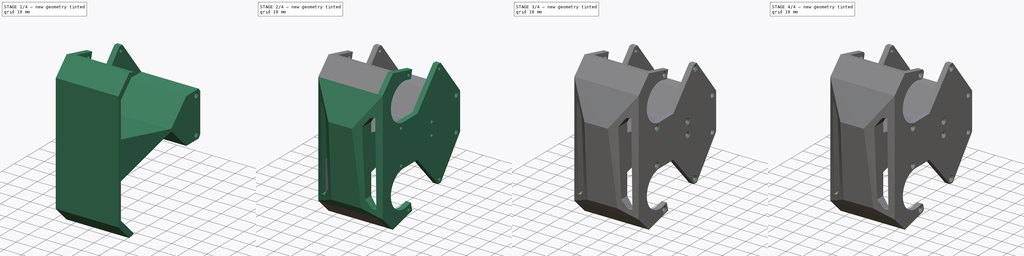
[diagram: build sequence overview — one tinted view per stage of 4, left to right]
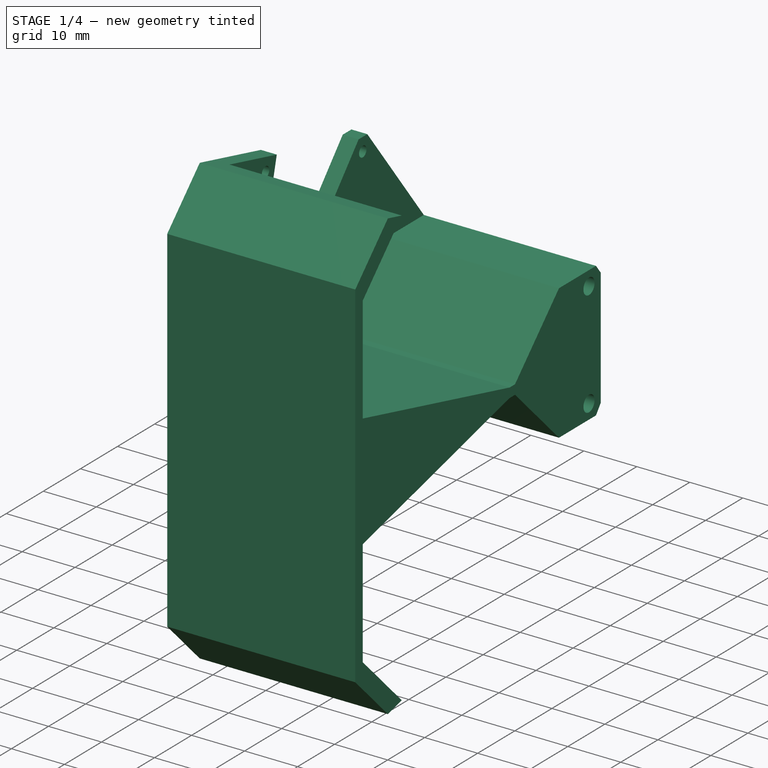
[diagram: stage 1 of 4 — iso view after this stage's code; geometry added in this stage tinted green]
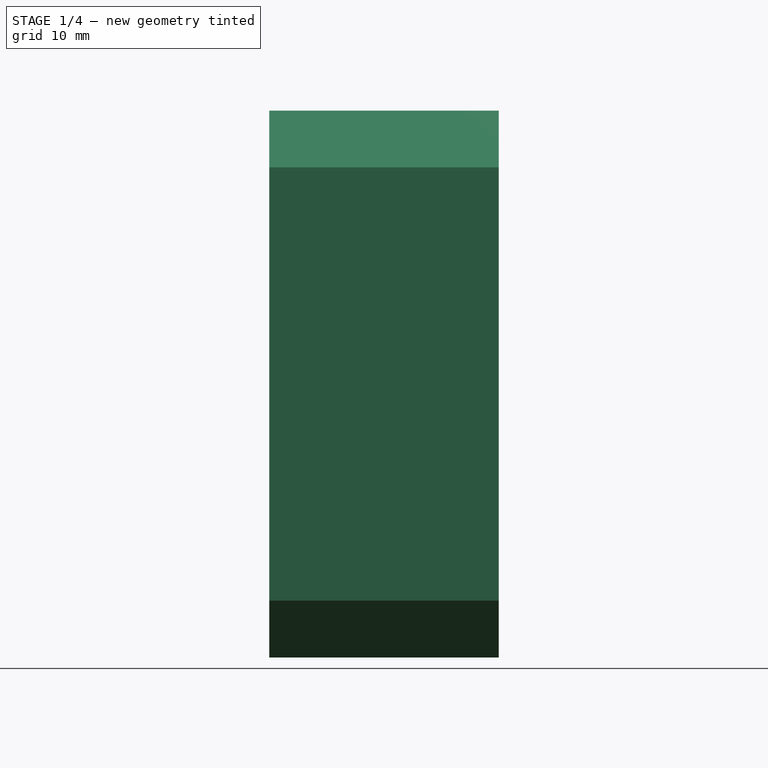
[diagram: stage 1 of 4 — front view after this stage's code; geometry added in this stage tinted green]
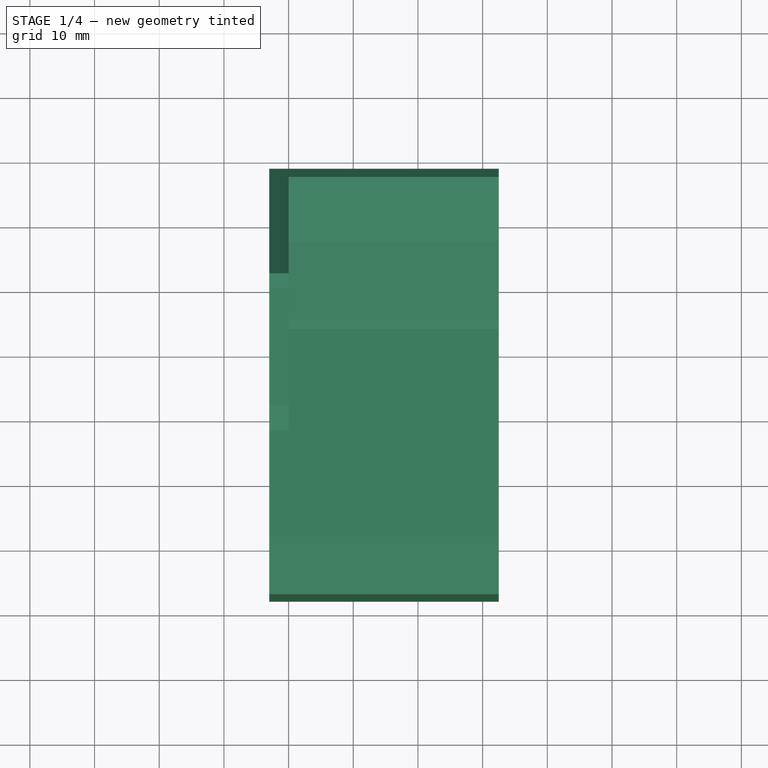
[diagram: stage 1 of 4 — top view after this stage's code; geometry added in this stage tinted green]
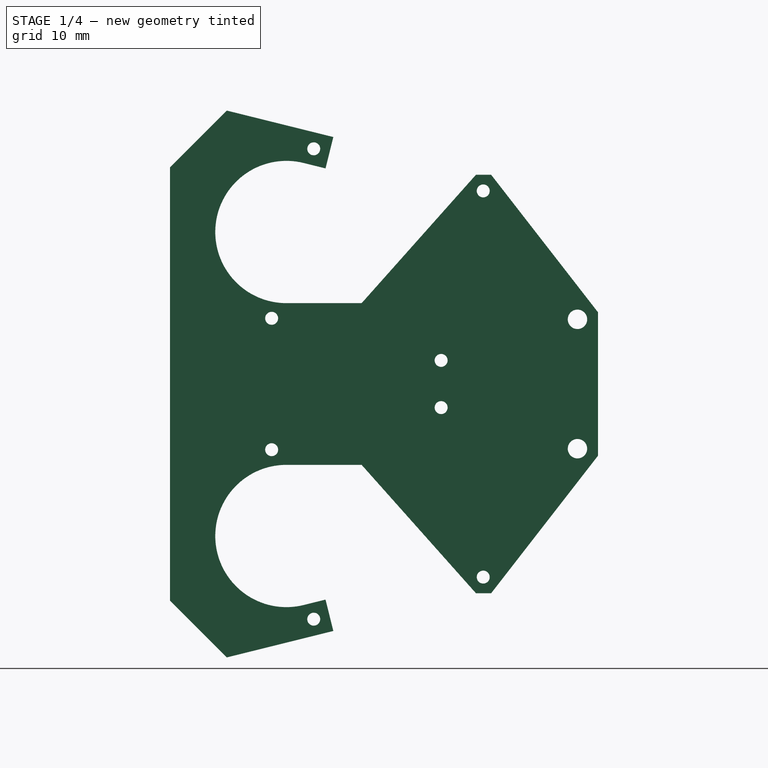
[diagram: stage 1 of 4 — right view after this stage's code; geometry added in this stage tinted green]
FCSTD DOCUMENT  (FreeCAD 0.21R33668 +26 (Git))
Label: Leg_frame_nee
License: All rights reserved
LicenseURL: https://en.wikipedia.org/wiki/All_rights_reserved
objects: Sketcher::SketchObject×8, PartDesign::Pad×3, PartDesign::Pocket×3, PartDesign::Chamfer×3, PartDesign::AdditiveLoft×1, PartDesign::Body×1
note: 29 computed .brp shape members not serialized (recipe doc carries the construction recipe); baked Part::Feature solids carry a one-line shape summary decoded from their .brp

FEATURE [Sketcher::SketchObject] Sketch
  FullyConstrained = true
  MapMode = 5
  Placement = pos=(0,0,0) rot=(0.57735,0.57735,0.57735;2.0944rad)
  Support = -> [YZ_Plane]
  sketch-geometry (68):
    g0: ArcOfCircle CenterX=0 CenterY=23.5 CenterZ=0 NormalX=0 NormalY=0 NormalZ=1 AngleXU=0 Radius=11 StartAngle=1.32738 EndAngle=4.71239
    g1: Circle CenterX=0 CenterY=23.5 CenterZ=0 NormalX=0 NormalY=0 NormalZ=1 AngleXU=0 Radius=16
    g2: LineSegment StartX=3.85635 StartY=39.0283 StartZ=0 EndX=33.9425 EndY=31.5566 EndZ=0
    g3: LineSegment StartX=33.9425 StartY=31.5566 StartZ=0 EndX=26.2298 EndY=0.5 EndZ=0
    g4: LineSegment StartX=26.2298 StartY=0.5 StartZ=0 EndX=-3.85635 EndY=7.97169 EndZ=0
    g5: ArcOfCircle CenterX=0 CenterY=-23.5 CenterZ=0 NormalX=0 NormalY=0 NormalZ=1 AngleXU=0 Radius=11 StartAngle=1.5708 EndAngle=4.95581
    g6: Circle CenterX=0 CenterY=-23.5 CenterZ=0 NormalX=0 NormalY=0 NormalZ=1 AngleXU=0 Radius=16
    g7: LineSegment StartX=3.85635 StartY=-39.0283 StartZ=0 EndX=33.9425 EndY=-31.5566 EndZ=0
    g8: LineSegment StartX=33.9425 StartY=-31.5566 StartZ=0 EndX=26.2298 EndY=-0.5 EndZ=0
    g9: LineSegment StartX=-3.85635 StartY=-7.97169 StartZ=0 EndX=26.2298 EndY=-0.5 EndZ=0
    g10: LineSegment StartX=0 StartY=23.5 StartZ=0 EndX=0 EndY=-23.5 EndZ=0
    g11: LineSegment StartX=45 StartY=10 StartZ=0 EndX=45 EndY=-10 EndZ=0
    g12: LineSegment StartX=4.22432 StartY=36.361 StartZ=0 EndX=30.4283 EndY=29.8534 EndZ=0
    g13: LineSegment StartX=30.4283 StartY=29.8534 StartZ=0 EndX=23.9208 EndY=3.64937 EndZ=0
    g14: LineSegment StartX=23.9208 StartY=3.64937 StartZ=0 EndX=-2.28328 EndY=10.157 EndZ=0
    g15: LineSegment StartX=-2.28328 StartY=10.157 StartZ=0 EndX=4.22432 EndY=36.361 EndZ=0
    g16: Circle CenterX=4.22432 CenterY=36.361 CenterZ=0 NormalX=0 NormalY=0 NormalZ=1 AngleXU=0 Radius=1
    g17: Circle CenterX=-2.28328 CenterY=10.157 CenterZ=0 NormalX=0 NormalY=0 NormalZ=1 AngleXU=0 Radius=1
    g18: Circle CenterX=23.9208 CenterY=3.64937 CenterZ=0 NormalX=0 NormalY=0 NormalZ=1 AngleXU=0 Radius=1
    g19: Circle CenterX=30.4283 CenterY=29.8534 CenterZ=0 NormalX=0 NormalY=0 NormalZ=1 AngleXU=0 Radius=1
    g20: LineSegment StartX=-2.28328 StartY=-10.157 StartZ=0 EndX=23.9208 EndY=-3.64937 EndZ=0
    g21: LineSegment StartX=23.9208 StartY=-3.64937 StartZ=0 EndX=30.4283 EndY=-29.8534 EndZ=0
    g22: LineSegment StartX=30.4283 StartY=-29.8534 StartZ=0 EndX=4.22432 EndY=-36.361 EndZ=0
    g23: LineSegment StartX=4.22432 StartY=-36.361 StartZ=0 EndX=-2.28328 EndY=-10.157 EndZ=0
    g24: Circle CenterX=-2.28328 CenterY=-10.157 CenterZ=0 NormalX=0 NormalY=0 NormalZ=1 AngleXU=0 Radius=1
    g25: Circle CenterX=4.22432 CenterY=-36.361 CenterZ=0 NormalX=0 NormalY=0 NormalZ=1 AngleXU=0 Radius=1
    g26: Circle CenterX=30.4283 CenterY=-29.8534 CenterZ=0 NormalX=0 NormalY=0 NormalZ=1 AngleXU=0 Radius=1
    g27: Circle CenterX=23.9208 CenterY=-3.64937 CenterZ=0 NormalX=0 NormalY=0 NormalZ=1 AngleXU=0 Radius=1
    g28: LineSegment StartX=0 StartY=23.5 StartZ=0 EndX=0.97052 EndY=23.259 EndZ=0
    g29: LineSegment StartX=0 StartY=-23.5 StartZ=0 EndX=0.97052 EndY=-23.259 EndZ=0
    g30: Circle CenterX=45 CenterY=10 CenterZ=0 NormalX=0 NormalY=0 NormalZ=1 AngleXU=0 Radius=1.5
    g31: Circle CenterX=45 CenterY=-10 CenterZ=0 NormalX=0 NormalY=0 NormalZ=1 AngleXU=0 Radius=1.5
    g32: LineSegment StartX=-9.22341 StartY=42.2766 StartZ=0 EndX=-18 EndY=33.5 EndZ=0
    g33: LineSegment StartX=-18 StartY=33.5 StartZ=0 EndX=-18 EndY=-33.5 EndZ=0
    g34: LineSegment StartX=-18 StartY=-33.5 StartZ=0 EndX=-9.22341 EndY=-42.2766 EndZ=0
    g35: LineSegment StartX=26.2298 StartY=0.5 StartZ=0 EndX=43.1548 EndY=12.5843 EndZ=0
    g36: LineSegment StartX=-18 StartY=30.3079 StartZ=0 EndX=-3.29791 EndY=40.805 EndZ=0
    g37: Circle CenterX=31 CenterY=35.5 CenterZ=0 NormalX=0 NormalY=0 NormalZ=1 AngleXU=0 Radius=3
    g38: LineSegment StartX=-16 StartY=-35.5 StartZ=0 EndX=-16 EndY=35.5 EndZ=0
    g39: LineSegment StartX=48.1754 StartY=11.0887 StartZ=0 EndX=48.1754 EndY=-11.0887 EndZ=0
    g40: LineSegment StartX=-9.0955 StartY=36.6633 StartZ=0 EndX=-14.197 EndY=16.1213 EndZ=0
    g41: LineSegment StartX=0 StartY=23.5 StartZ=0 EndX=-11.6462 EndY=26.3923 EndZ=0
    g42: LineSegment StartX=-9.22341 StartY=42.2766 StartZ=0 EndX=7.25317 EndY=38.1847 EndZ=0
    g43: LineSegment StartX=-9.22341 StartY=-42.2766 StartZ=0 EndX=7.25317 EndY=-38.1847 EndZ=0
    g44: Circle CenterX=30.4283 CenterY=-29.8534 CenterZ=0 NormalX=0 NormalY=0 NormalZ=1 AngleXU=0 Radius=2.5
    g45: LineSegment StartX=-18 StartY=-30.3079 StartZ=0 EndX=-3.29791 EndY=-40.805 EndZ=0
    g46: LineSegment StartX=48.1754 StartY=11.0887 StartZ=0 EndX=31.6518 EndY=32.3534 EndZ=0
    g47: LineSegment StartX=7.25317 StartY=38.1847 StartZ=0 EndX=6.04806 EndY=33.3321 EndZ=0
    g48: LineSegment StartX=6.04806 StartY=33.3321 StartZ=0 EndX=2.65124 EndY=34.1757 EndZ=0
    g49: Circle CenterX=4.22432 CenterY=36.361 CenterZ=0 NormalX=0 NormalY=0 NormalZ=1 AngleXU=0 Radius=2.5
    g50: LineSegment StartX=48.1754 StartY=-11.0887 StartZ=0 EndX=31.6518 EndY=-32.3534 EndZ=0
    g51: LineSegment StartX=7.25317 StartY=-38.1847 StartZ=0 EndX=6.04806 EndY=-33.3321 EndZ=0
    g52: LineSegment StartX=6.04806 StartY=-33.3321 StartZ=0 EndX=2.65124 EndY=-34.1757 EndZ=0
    g53: Circle CenterX=4.22432 CenterY=-36.361 CenterZ=0 NormalX=0 NormalY=0 NormalZ=1 AngleXU=0 Radius=2.5
    g54: LineSegment StartX=29.307 StartY=32.3534 StartZ=0 EndX=31.6518 EndY=32.3534 EndZ=0
    g55: Circle CenterX=30.4283 CenterY=29.8534 CenterZ=0 NormalX=0 NormalY=0 NormalZ=1 AngleXU=0 Radius=2.5
    g56: LineSegment StartX=-2e-15 StartY=12.5 StartZ=0 EndX=11.6289 EndY=12.5 EndZ=0
    g57: LineSegment StartX=11.6289 StartY=12.5 StartZ=0 EndX=29.307 EndY=32.3534 EndZ=0
    g58: LineSegment StartX=29.307 StartY=-32.3534 StartZ=0 EndX=31.6518 EndY=-32.3534 EndZ=0
    g59: LineSegment StartX=7e-16 StartY=-12.5 StartZ=0 EndX=11.6289 EndY=-12.5 EndZ=0
    g60: LineSegment StartX=11.6289 StartY=-12.5 StartZ=0 EndX=29.307 EndY=-32.3534 EndZ=0
    g61: LineSegment StartX=43.4123 StartY=12.75 StartZ=0 EndX=41.8246 EndY=10 EndZ=0
    g62: LineSegment StartX=41.8246 StartY=10 StartZ=0 EndX=43.4123 EndY=7.25 EndZ=0
    g63: LineSegment StartX=43.4123 StartY=7.25 StartZ=0 EndX=46.5877 EndY=7.25 EndZ=0
    g64: LineSegment StartX=46.5877 StartY=7.25 StartZ=0 EndX=48.1754 EndY=10 EndZ=0
    g65: LineSegment StartX=48.1754 StartY=10 StartZ=0 EndX=46.5877 EndY=12.75 EndZ=0
    g66: LineSegment StartX=46.5877 StartY=12.75 StartZ=0 EndX=43.4123 EndY=12.75 EndZ=0
    g67: Circle CenterX=45 CenterY=10 CenterZ=0 NormalX=0 NormalY=0 NormalZ=1 AngleXU=0 Radius=3.17543
  constraints (174):
    c: Coincident(g3,g2)
    c: Coincident(g4,g3)
    c: Tangent(g4,g1) = 1.5708
    c: Tangent(g2,g1) = 1.5708
    c: Coincident(g0,g1)
    c: Diameter(g6) = 32
    c: Coincident(g8,g7)
    c: Tangent(g7,g6) = -1.5708
    c: Coincident(g5,g6)
    c: Coincident(g9,g8)
    c: Tangent(g9,g6) = 1.5708
    c: Equal(g9,g4)
    c: Coincident(g10,g0)
    c: Coincident(g10,g5)
    c: PointOnObject(g-1,g10)
    c: Symmetric(g5,g0,g-1)
    c: DistanceY(g10,g10) = 47
    c: DistanceY(g11,g11) = 20
    c: Perpendicular(g2,g3)
    c: Perpendicular(g3,g4)
    c: Perpendicular(g8,g9)
    c: Perpendicular(g7,g8)
    c: Distance(g2) = 31
    c: Coincident(g12,g13)
    c: Coincident(g13,g14)
    c: Coincident(g14,g15)
    c: Coincident(g15,g12)
    c: Coincident(g16,g12)
    c: Coincident(g17,g14)
    c: Coincident(g18,g13)
    c: Coincident(g19,g12)
    c: Equal(g1,g6)
    c: Equal(g0,g5)
    c: Diameter(g5) = 22
    c: Symmetric(g11,g11,g-1)
    c: DistanceX(g-1,g11) = 45
    c: Equal(g17,g16)
    c: Equal(g16,g19)
    c: Equal(g19,g18)
    c: Equal(g15,g12)
    c: Equal(g12,g13)
    c: Equal(g13,g14)
    c: Distance(g12) = 27
    c: Coincident(g20,g21)
    c: Coincident(g21,g22)
    c: Coincident(g22,g23)
    c: Coincident(g23,g20)
    c: Coincident(g24,g20)
    c: Coincident(g25,g22)
    c: Coincident(g26,g21)
    c: Coincident(g27,g20)
    c: Equal(g25,g24)
    c: Equal(g24,g27)
    c: Equal(g27,g26)
    c: Equal(g16,g24) = 2
    c: Equal(g23,g20)
    c: Equal(g20,g21)
    c: Equal(g21,g22)
    c: Equal(g12,g20) = 27
    c: Coincident(g28,g0)
    c: PointOnObject(g28,g15)
    c: Parallel(g28,g2)
    c: Symmetric(g17,g16,g28)
    c: Perpendicular(g15,g12)
    c: Coincident(g29,g5)
    c: PointOnObject(g29,g23)
    c: Parallel(g22,g7)
    c: Symmetric(g24,g25,g29)
    c: Symmetric(g28,g29,g-1)
    c: Coincident(g30,g11)
    c: Coincident(g31,g11)
    c: Diameter(g30) = 3
    c: Equal(g31,g30)
    c: Coincident(g33,g32)
    c: Coincident(g34,g33)
    c: Coincident(g35,g3)
    c: DistanceY(g8,g3) = 1
    c: PointOnObject(g36,g33)
    c: Tangent(g36,g1)
    c: Diameter(g37) = 6
    c: DistanceX(g0,g37) = 31
    c: DistanceY(g0,g37) = 12
    c: PointOnObject(g38,g34)
    c: PointOnObject(g38,g32)
    c: Vertical(g38)
    c: Tangent(g38,g6)
    c: Parallel(g35,g36)
    c: Angle(g33,g32) = 2.35619
    c: DistanceY(g33,g33) = 67
    c: Symmetric(g32,g33,g-1)
    c: DistanceY(g36,g32) = 3.1921
    c: Symmetric(g39,g39,g-1)
    c: PointOnObject(g40,g1)
    c: PointOnObject(g40,g1)
    c: Coincident(g41,g0)
    c: PointOnObject(g41,g40)
    c: Perpendicular(g40,g41)
    c: Distance(g41) = 12
    c: DistanceX(g32,g40) = 3.80303
    c: DistanceX(g32,g38) = 2
    c: Symmetric(g32,g34,g-1)
    c: Distance(g28) = 1
    c: Coincident(g42,g32)
    c: PointOnObject(g36,g42)
    c: Tangent(g42,g2)
    c: Parallel(g28,g41)
    c: Coincident(g43,g34)
    c: Diameter(g17) = 2
    c: Tangent(g7,g43)
    c: Coincident(g44,g26)
    c: Tangent(g44,g7)
    c: PointOnObject(g45,g43)
    c: Tangent(g45,g6)
    c: Symmetric(g36,g45,g-1)
    c: Coincident(g46,g39)
    c: Coincident(g46,g54)
    c: Coincident(g47,g42)
    c: Coincident(g48,g47)
    c: Tangent(g48,g0) = -1.5708
    c: Coincident(g49,g16)
    c: Tangent(g49,g2)
    c: Coincident(g50,g39)
    c: Coincident(g50,g58)
    c: Coincident(g51,g43)
    c: Coincident(g52,g51)
    c: Tangent(g52,g5) = 1.5708
    c: Coincident(g53,g22)
    c: Tangent(g53,g51)
    c: Tangent(g53,g43)
    c: Perpendicular(g43,g51)
    c: Perpendicular(g52,g51)
    c: Coincident(g57,g54)
    c: Coincident(g55,g19)
    c: Tangent(g55,g2)
    c: Tangent(g54,g55)
    c: Tangent(g46,g55)
    c: Coincident(g56,g57)
    c: Tangent(g57,g55)
    c: Tangent(g56,g0) = -1.5708
    c: Tangent(g47,g49)
    c: Perpendicular(g42,g47)
    c: Perpendicular(g48,g47)
    c: Horizontal(g56)
    c: Horizontal(g54)
    c: Tangent(g1,g57)
    c: Coincident(g60,g58)
    c: Coincident(g59,g60)
    c: Horizontal(g58)
    c: Tangent(g58,g44)
    c: Tangent(g50,g44)
    c: Tangent(g60,g44)
    c: Tangent(g59,g5) = 1.5708
    c: Tangent(g60,g6)
    c: Horizontal(g59)
    c: Coincident(g61,g62)
    c: Coincident(g62,g63)
    c: Coincident(g63,g64)
    c: Coincident(g64,g65)
    c: Coincident(g65,g66)
    c: Coincident(g66,g61)
    c: Equal(g61, g62-g66) x5
    c: PointOnObject(g61,g67)
    c: PointOnObject(g62,g67)
    c: PointOnObject(g63,g67)
    c: PointOnObject(g64,g67)
    c: PointOnObject(g65,g67)
    c: PointOnObject(g66,g67)
    c: Coincident(g67,g30)
    c: Tangent(g35,g67) = 1.5708
    c: Horizontal(g66)
    c: DistanceY(g62,g61) = 5.5
    c: Tangent(g67,g46)
    c: Tangent(g67,g39)
    c: DistanceY(g46,g37) = 3.1466
FEATURE [PartDesign::Pad] Pad
  Direction = (1,-2e-16,3e-16)
  Length = 3
  Length2 = 10
  Placement = pos=(0,0,0) rot=(1,1,1;2.0944rad)
  Profile = -> Sketch
  ReferenceAxis = -> Sketch [N_Axis]
  Reversed = true
  Type = 0
FEATURE [Sketcher::SketchObject] Sketch001
  ExternalGeometry = -> [Pad]
  FullyConstrained = true
  MapMode = 5
  Placement = pos=(-2.1e-15,0,0) rot=(0.57735,0.57735,0.57735;2.0944rad)
  Support = -> [Pad]
  sketch-geometry (35):
    g0: LineSegment StartX=-9.22341 StartY=42.2766 StartZ=0 EndX=-18 EndY=33.5 EndZ=0
    g1: LineSegment StartX=-18 StartY=33.5 StartZ=0 EndX=-18 EndY=-33.5 EndZ=0
    g2: LineSegment StartX=-18 StartY=-33.5 StartZ=0 EndX=-9.22341 EndY=-42.2766 EndZ=0
    g3: LineSegment StartX=-9.22341 StartY=-42.2766 StartZ=0 EndX=-5.48608 EndY=-41.3484 EndZ=0
    g4: LineSegment StartX=7.8e-15 StartY=23.5 StartZ=0 EndX=-11.6462 EndY=26.3923 EndZ=0
    g5: Circle CenterX=7.8e-15 CenterY=23.5 CenterZ=0 NormalX=0 NormalY=0 NormalZ=1 AngleXU=0 Radius=16.5
    g6: LineSegment StartX=-16 StartY=30.8345 StartZ=0 EndX=-5.48608 EndY=41.3484 EndZ=0
    g7: LineSegment StartX=-5.48608 StartY=41.3484 StartZ=0 EndX=-9.22341 EndY=42.2766 EndZ=0
    g8: LineSegment StartX=-16 StartY=30.8345 StartZ=0 EndX=-16 EndY=10.7299 EndZ=0
    g9: LineSegment StartX=-5.48608 StartY=-41.3484 StartZ=0 EndX=-16 EndY=-30.8345 EndZ=0
    g10: LineSegment StartX=-16 StartY=-30.8345 StartZ=0 EndX=-16 EndY=-10.7299 EndZ=0
    g11: LineSegment StartX=-16 StartY=-10.7299 StartZ=0 EndX=23.5844 EndY=-0.899365 EndZ=0
    g12: Circle CenterX=45 CenterY=-10 CenterZ=0 NormalX=0 NormalY=0 NormalZ=1 AngleXU=0 Radius=1.5
    g13: LineSegment StartX=43.4123 StartY=12.75 StartZ=0 EndX=41.8246 EndY=10 EndZ=0
    g14: LineSegment StartX=41.8246 StartY=10 StartZ=0 EndX=43.4123 EndY=7.25 EndZ=0
    g15: LineSegment StartX=43.4123 StartY=7.25 StartZ=0 EndX=46.5877 EndY=7.25 EndZ=0
    g16: LineSegment StartX=46.5877 StartY=7.25 StartZ=0 EndX=48.1754 EndY=10 EndZ=0
    g17: LineSegment StartX=48.1754 StartY=10 StartZ=0 EndX=46.5877 EndY=12.75 EndZ=0
    g18: LineSegment StartX=46.5877 StartY=12.75 StartZ=0 EndX=43.4123 EndY=12.75 EndZ=0
    g19: Circle CenterX=45 CenterY=10 CenterZ=0 NormalX=0 NormalY=0 NormalZ=1 AngleXU=0 Radius=3.17543
    g20: LineSegment StartX=-16 StartY=10.7299 StartZ=0 EndX=23.5844 EndY=0.899365 EndZ=0
    g21: LineSegment StartX=-8.91672 StartY=37.3832 StartZ=0 EndX=-14.3758 EndY=15.4014 EndZ=0
    g22: Circle CenterX=45 CenterY=10 CenterZ=0 NormalX=0 NormalY=0 NormalZ=1 AngleXU=0 Radius=1.5
    g23: LineSegment StartX=23.5844 StartY=0.899365 StartZ=0 EndX=25.0598 EndY=0.899365 EndZ=0
    g24: LineSegment StartX=25.0598 StartY=0.899365 StartZ=0 EndX=36.9105 EndY=12.75 EndZ=0
    g25: LineSegment StartX=23.5844 StartY=-0.899365 StartZ=0 EndX=25.0598 EndY=-0.899365 EndZ=0
    g26: LineSegment StartX=25.0598 StartY=-0.899365 StartZ=0 EndX=36.9105 EndY=-12.75 EndZ=0
    g27: LineSegment StartX=36.9105 StartY=-12.75 StartZ=0 EndX=46.8845 EndY=-12.75 EndZ=0
    g28: LineSegment StartX=36.9105 StartY=12.75 StartZ=0 EndX=46.8845 EndY=12.75 EndZ=0
    g29: LineSegment StartX=46.8845 StartY=12.75 StartZ=0 EndX=48.1754 EndY=11.0887 EndZ=0
    g30: LineSegment StartX=48.1754 StartY=11.0887 StartZ=0 EndX=48.1754 EndY=-11.0887 EndZ=0
    g31: LineSegment StartX=48.1754 StartY=-11.0887 StartZ=0 EndX=46.8845 EndY=-12.75 EndZ=0
    g32: LineSegment StartX=4.22432 StartY=36.361 StartZ=0 EndX=-2.28328 EndY=10.157 EndZ=0
    g33: Circle CenterX=-2.28328 CenterY=10.157 CenterZ=0 NormalX=0 NormalY=0 NormalZ=1 AngleXU=0 Radius=2.75
    g34: Circle CenterX=23.9208 CenterY=3.64937 CenterZ=0 NormalX=0 NormalY=0 NormalZ=1 AngleXU=0 Radius=2.75
  constraints (81):
    c: Coincident(g13,g14)
    c: Coincident(g14,g15)
    c: Coincident(g15,g16)
    c: Coincident(g16,g17)
    c: Coincident(g17,g18)
    c: Coincident(g18,g13)
    c: Equal(g13, g14-g18) x5
    c: PointOnObject(g13,g19)
    c: PointOnObject(g14,g19)
    c: PointOnObject(g15,g19)
    c: PointOnObject(g16,g19)
    c: PointOnObject(g17,g19)
    c: PointOnObject(g18,g19)
    c: Coincident(g19,g-13)
    c: Horizontal(g18)
    c: DistanceY(g14,g13) = 5.5
    c: Diameter(g5) = 33
    c: Tangent(g5,g6)
    c: Coincident(g4,g5)
    c: Coincident(g4,g-5)
    c: Coincident(g0,g7)
    c: Coincident(g0,g-4)
    c: Coincident(g6,g7)
    c: Coincident(g6,g8)
    c: Coincident(g0,g1)
    c: Coincident(g0,g-6)
    c: PointOnObject(g6,g-4)
    c: Parallel(g6,g0)
    c: PointOnObject(g21,g5)
    c: PointOnObject(g4,g21)
    c: Symmetric(g21,g21,g4)
    c: Distance(g4) = 12
    c: Coincident(g8,g20)
    c: Vertical(g8)
    c: DistanceX(g0,g6) = 2
    c: Coincident(g1,g2)
    c: Coincident(g1,g-9)
    c: Coincident(g2,g3)
    c: Coincident(g2,g-9)
    c: Symmetric(g6,g3,g-1)
    c: Coincident(g3,g9)
    c: Coincident(g9,g10)
    c: Symmetric(g6,g9,g-1)
    c: Coincident(g10,g11)
    c: Symmetric(g8,g10,g-1)
    c: Coincident(g22,g19)
    c: Equal(g-13,g22)
    c: Equal(g22,g12)
    c: Coincident(g12,g-14)
    c: Symmetric(g11,g20,g-1)
    c: Coincident(g23,g20)
    c: Coincident(g24,g23)
    c: Parallel(g24,g6)
    c: Coincident(g25,g11)
    c: Coincident(g26,g25)
    c: Coincident(g27,g26)
    c: Symmetric(g23,g25,g-1)
    c: Symmetric(g24,g26,g-1)
    c: Coincident(g28,g24)
    c: PointOnObject(g28,g-12)
    c: Coincident(g29,g28)
    c: Coincident(g29,g-12)
    c: Coincident(g30,g29)
    c: Coincident(g30,g-11)
    c: Coincident(g31,g30)
    c: Coincident(g31,g27)
    c: Symmetric(g28,g27,g-1)
    c: Coincident(g32,g-17)
    c: Coincident(g32,g-18)
    c: Parallel(g32,g21)
    c: Coincident(g33,g32)
    c: Coincident(g34,g-19)
    c: Equal(g33,g34)
    c: Diameter(g34) = 5.5
    c: Horizontal(g23)
    c: Tangent(g34,g23)
    c: Tangent(g24,g34)
    c: Tangent(g20,g34)
    c: Tangent(g20,g33)
    c: PointOnObject(g17,g28)
    c: PointOnObject(g13,g28)
FEATURE [PartDesign::Pad] Pad001
  BaseFeature = -> Pad
  Direction = (1,-4e-16,4e-16)
  Length = 32.5
  Length2 = 10
  Placement = pos=(0,0,0) rot=(1,1,1;2.0944rad)
  Profile = -> Sketch001
  ReferenceAxis = -> Sketch001 [N_Axis]
  Type = 0
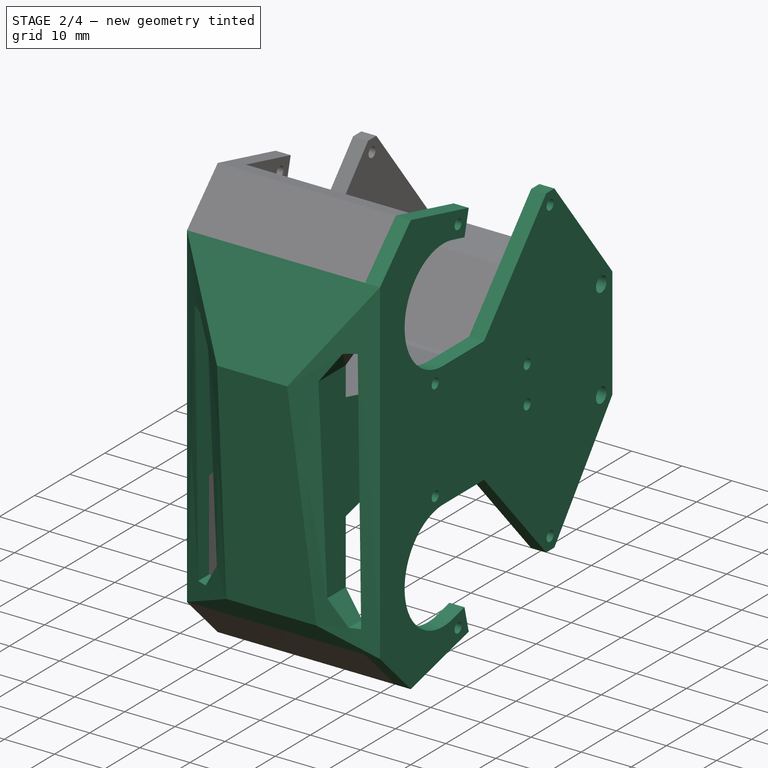
[diagram: stage 2 of 4 — iso view after this stage's code; geometry added in this stage tinted green]
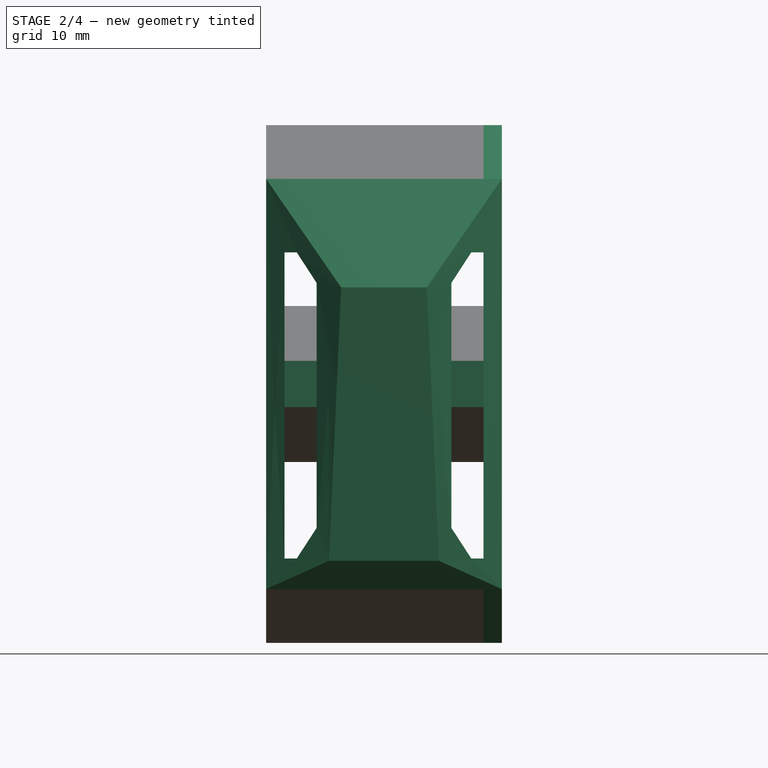
[diagram: stage 2 of 4 — front view after this stage's code; geometry added in this stage tinted green]
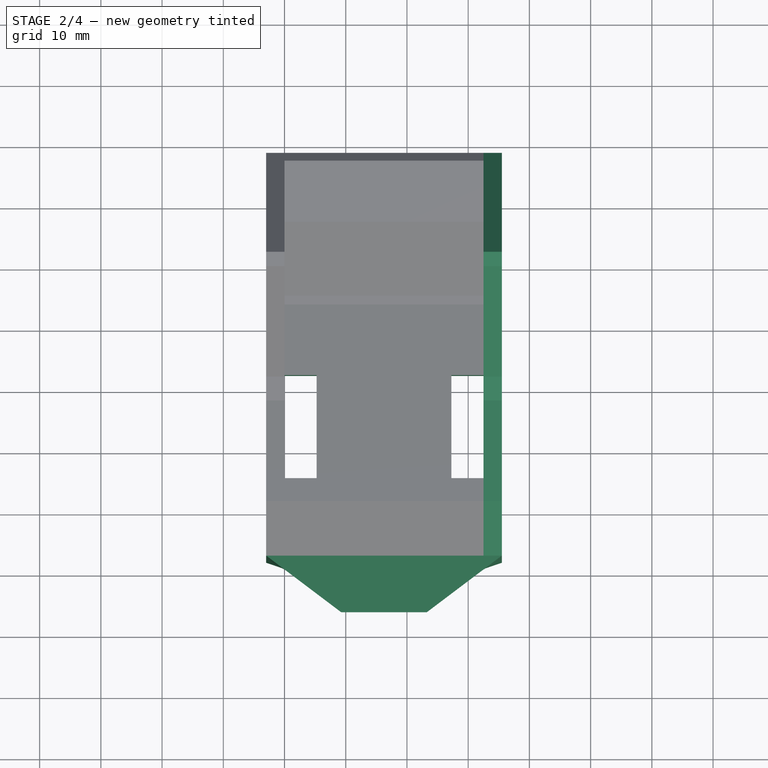
[diagram: stage 2 of 4 — top view after this stage's code; geometry added in this stage tinted green]
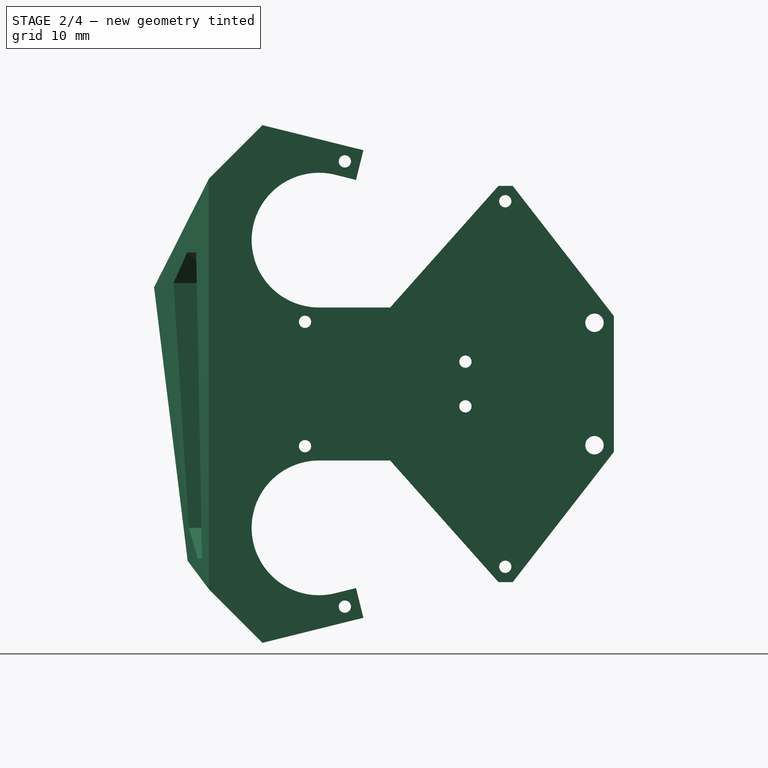
[diagram: stage 2 of 4 — right view after this stage's code; geometry added in this stage tinted green]
FEATURE [Sketcher::SketchObject] Sketch002
  FullyConstrained = true
  MapMode = 5
  Placement = pos=(32.5,-2.16e-14,1.8e-14) rot=(0.57735,0.57735,0.57735;2.0944rad)
  Support = -> [Pad001]
  expr: Constraints[101] = Sketch.Constraints[101]
  expr: Constraints[107] = Sketch.Constraints[107]
  expr: Constraints[16] = Sketch.Constraints[16]
  expr: Constraints[174] = Sketch.Constraints[174]
  expr: Constraints[17] = Sketch.Constraints[17]
  expr: Constraints[22] = Sketch.Constraints[22]
  expr: Constraints[33] = Sketch.Constraints[33]
  expr: Constraints[35] = Sketch.Constraints[35]
  expr: Constraints[42] = Sketch.Constraints[42]
  expr: Constraints[5] = Sketch.Constraints[5]
  expr: Constraints[71] = Sketch.Constraints[71]
  expr: Constraints[76] = Sketch.Constraints[76]
  expr: Constraints[79] = Sketch.Constraints[79]
  expr: Constraints[80] = Sketch.Constraints[80]
  expr: Constraints[81] = Sketch.Constraints[81]
  expr: Constraints[87] = Sketch.Constraints[87]
  expr: Constraints[88] = Sketch.Constraints[88]
  expr: Constraints[97] = Sketch.Constraints[97]
  expr: Constraints[99] = Sketch.Constraints[99]
  sketch-geometry (68):
    g0: ArcOfCircle CenterX=0 CenterY=23.5 CenterZ=0 NormalX=0 NormalY=0 NormalZ=1 AngleXU=0 Radius=11 StartAngle=1.32738 EndAngle=4.71239
    g1: Circle CenterX=0 CenterY=23.5 CenterZ=0 NormalX=0 NormalY=0 NormalZ=1 AngleXU=0 Radius=16
    g2: LineSegment StartX=3.85635 StartY=39.0283 StartZ=0 EndX=33.9425 EndY=31.5566 EndZ=0
    g3: LineSegment StartX=33.9425 StartY=31.5566 StartZ=0 EndX=26.2298 EndY=0.5 EndZ=0
    g4: LineSegment StartX=26.2298 StartY=0.5 StartZ=0 EndX=-3.85635 EndY=7.97169 EndZ=0
    g5: ArcOfCircle CenterX=0 CenterY=-23.5 CenterZ=0 NormalX=0 NormalY=0 NormalZ=1 AngleXU=0 Radius=11 StartAngle=1.5708 EndAngle=4.95581
    g6: Circle CenterX=0 CenterY=-23.5 CenterZ=0 NormalX=0 NormalY=0 NormalZ=1 AngleXU=0 Radius=16
    g7: LineSegment StartX=3.85635 StartY=-39.0283 StartZ=0 EndX=33.9425 EndY=-31.5566 EndZ=0
    g8: LineSegment StartX=33.9425 StartY=-31.5566 StartZ=0 EndX=26.2298 EndY=-0.5 EndZ=0
    g9: LineSegment StartX=-3.85635 StartY=-7.97169 StartZ=0 EndX=26.2298 EndY=-0.5 EndZ=0
    g10: LineSegment StartX=0 StartY=23.5 StartZ=0 EndX=0 EndY=-23.5 EndZ=0
    g11: LineSegment StartX=45 StartY=10 StartZ=0 EndX=45 EndY=-10 EndZ=0
    g12: LineSegment StartX=4.22432 StartY=36.361 StartZ=0 EndX=30.4283 EndY=29.8534 EndZ=0
    g13: LineSegment StartX=30.4283 StartY=29.8534 StartZ=0 EndX=23.9208 EndY=3.64937 EndZ=0
    g14: LineSegment StartX=23.9208 StartY=3.64937 StartZ=0 EndX=-2.28328 EndY=10.157 EndZ=0
    g15: LineSegment StartX=-2.28328 StartY=10.157 StartZ=0 EndX=4.22432 EndY=36.361 EndZ=0
    g16: Circle CenterX=4.22432 CenterY=36.361 CenterZ=0 NormalX=0 NormalY=0 NormalZ=1 AngleXU=0 Radius=1
    g17: Circle CenterX=-2.28328 CenterY=10.157 CenterZ=0 NormalX=0 NormalY=0 NormalZ=1 AngleXU=0 Radius=1
    g18: Circle CenterX=23.9208 CenterY=3.64937 CenterZ=0 NormalX=0 NormalY=0 NormalZ=1 AngleXU=0 Radius=1
    g19: Circle CenterX=30.4283 CenterY=29.8534 CenterZ=0 NormalX=0 NormalY=0 NormalZ=1 AngleXU=0 Radius=1
    g20: LineSegment StartX=-2.28328 StartY=-10.157 StartZ=0 EndX=23.9208 EndY=-3.64937 EndZ=0
    g21: LineSegment StartX=23.9208 StartY=-3.64937 StartZ=0 EndX=30.4283 EndY=-29.8534 EndZ=0
    g22: LineSegment StartX=30.4283 StartY=-29.8534 StartZ=0 EndX=4.22432 EndY=-36.361 EndZ=0
    g23: LineSegment StartX=4.22432 StartY=-36.361 StartZ=0 EndX=-2.28328 EndY=-10.157 EndZ=0
    g24: Circle CenterX=-2.28328 CenterY=-10.157 CenterZ=0 NormalX=0 NormalY=0 NormalZ=1 AngleXU=0 Radius=1
    g25: Circle CenterX=4.22432 CenterY=-36.361 CenterZ=0 NormalX=0 NormalY=0 NormalZ=1 AngleXU=0 Radius=1
    g26: Circle CenterX=30.4283 CenterY=-29.8534 CenterZ=0 NormalX=0 NormalY=0 NormalZ=1 AngleXU=0 Radius=1
    g27: Circle CenterX=23.9208 CenterY=-3.64937 CenterZ=0 NormalX=0 NormalY=0 NormalZ=1 AngleXU=0 Radius=1
    g28: LineSegment StartX=0 StartY=23.5 StartZ=0 EndX=0.97052 EndY=23.259 EndZ=0
    g29: LineSegment StartX=0 StartY=-23.5 StartZ=0 EndX=0.97052 EndY=-23.259 EndZ=0
    g30: Circle CenterX=45 CenterY=10 CenterZ=0 NormalX=0 NormalY=0 NormalZ=1 AngleXU=0 Radius=1.5
    g31: Circle CenterX=45 CenterY=-10 CenterZ=0 NormalX=0 NormalY=0 NormalZ=1 AngleXU=0 Radius=1.5
    g32: LineSegment StartX=-9.22341 StartY=42.2766 StartZ=0 EndX=-18 EndY=33.5 EndZ=0
    g33: LineSegment StartX=-18 StartY=33.5 StartZ=0 EndX=-18 EndY=-33.5 EndZ=0
    g34: LineSegment StartX=-18 StartY=-33.5 StartZ=0 EndX=-9.22341 EndY=-42.2766 EndZ=0
    g35: LineSegment StartX=26.2298 StartY=0.5 StartZ=0 EndX=43.1548 EndY=12.5843 EndZ=0
    g36: LineSegment StartX=-18 StartY=30.3079 StartZ=0 EndX=-3.29791 EndY=40.805 EndZ=0
    g37: Circle CenterX=31 CenterY=35.5 CenterZ=0 NormalX=0 NormalY=0 NormalZ=1 AngleXU=0 Radius=3
    g38: LineSegment StartX=-16 StartY=-35.5 StartZ=0 EndX=-16 EndY=35.5 EndZ=0
    g39: LineSegment StartX=48.1754 StartY=11.0887 StartZ=0 EndX=48.1754 EndY=-11.0887 EndZ=0
    g40: LineSegment StartX=-9.0955 StartY=36.6633 StartZ=0 EndX=-14.197 EndY=16.1213 EndZ=0
    g41: LineSegment StartX=0 StartY=23.5 StartZ=0 EndX=-11.6462 EndY=26.3923 EndZ=0
    g42: LineSegment StartX=-9.22341 StartY=42.2766 StartZ=0 EndX=7.25317 EndY=38.1847 EndZ=0
    g43: LineSegment StartX=-9.22341 StartY=-42.2766 StartZ=0 EndX=7.25317 EndY=-38.1847 EndZ=0
    g44: Circle CenterX=30.4283 CenterY=-29.8534 CenterZ=0 NormalX=0 NormalY=0 NormalZ=1 AngleXU=0 Radius=2.5
    g45: LineSegment StartX=-18 StartY=-30.3079 StartZ=0 EndX=-3.29791 EndY=-40.805 EndZ=0
    g46: LineSegment StartX=48.1754 StartY=11.0887 StartZ=0 EndX=31.6518 EndY=32.3534 EndZ=0
    g47: LineSegment StartX=7.25317 StartY=38.1847 StartZ=0 EndX=6.04806 EndY=33.3321 EndZ=0
    g48: LineSegment StartX=6.04806 StartY=33.3321 StartZ=0 EndX=2.65124 EndY=34.1757 EndZ=0
    g49: Circle CenterX=4.22432 CenterY=36.361 CenterZ=0 NormalX=0 NormalY=0 NormalZ=1 AngleXU=0 Radius=2.5
    g50: LineSegment StartX=48.1754 StartY=-11.0887 StartZ=0 EndX=31.6518 EndY=-32.3534 EndZ=0
    g51: LineSegment StartX=7.25317 StartY=-38.1847 StartZ=0 EndX=6.04806 EndY=-33.3321 EndZ=0
    g52: LineSegment StartX=6.04806 StartY=-33.3321 StartZ=0 EndX=2.65124 EndY=-34.1757 EndZ=0
    g53: Circle CenterX=4.22432 CenterY=-36.361 CenterZ=0 NormalX=0 NormalY=0 NormalZ=1 AngleXU=0 Radius=2.5
    g54: LineSegment StartX=29.307 StartY=32.3534 StartZ=0 EndX=31.6518 EndY=32.3534 EndZ=0
    g55: Circle CenterX=30.4283 CenterY=29.8534 CenterZ=0 NormalX=0 NormalY=0 NormalZ=1 AngleXU=0 Radius=2.5
    g56: LineSegment StartX=-2e-15 StartY=12.5 StartZ=0 EndX=11.6289 EndY=12.5 EndZ=0
    g57: LineSegment StartX=11.6289 StartY=12.5 StartZ=0 EndX=29.307 EndY=32.3534 EndZ=0
    g58: LineSegment StartX=29.307 StartY=-32.3534 StartZ=0 EndX=31.6518 EndY=-32.3534 EndZ=0
    g59: LineSegment StartX=7e-16 StartY=-12.5 StartZ=0 EndX=11.6289 EndY=-12.5 EndZ=0
    g60: LineSegment StartX=11.6289 StartY=-12.5 StartZ=0 EndX=29.307 EndY=-32.3534 EndZ=0
    g61: LineSegment StartX=43.4123 StartY=12.75 StartZ=0 EndX=41.8246 EndY=10 EndZ=0
    g62: LineSegment StartX=41.8246 StartY=10 StartZ=0 EndX=43.4123 EndY=7.25 EndZ=0
    g63: LineSegment StartX=43.4123 StartY=7.25 StartZ=0 EndX=46.5877 EndY=7.25 EndZ=0
    g64: LineSegment StartX=46.5877 StartY=7.25 StartZ=0 EndX=48.1754 EndY=10 EndZ=0
    g65: LineSegment StartX=48.1754 StartY=10 StartZ=0 EndX=46.5877 EndY=12.75 EndZ=0
    g66: LineSegment StartX=46.5877 StartY=12.75 StartZ=0 EndX=43.4123 EndY=12.75 EndZ=0
    g67: Circle CenterX=45 CenterY=10 CenterZ=0 NormalX=0 NormalY=0 NormalZ=1 AngleXU=0 Radius=3.17543
  constraints (173):
    c: Coincident(g3,g2)
    c: Coincident(g4,g3)
    c: Tangent(g4,g1) = 1.5708
    c: Tangent(g2,g1) = 1.5708
    c: Coincident(g0,g1)
    c: Diameter(g6) = 32
    c: Coincident(g8,g7)
    c: Tangent(g7,g6) = -1.5708
    c: Coincident(g5,g6)
    c: Coincident(g9,g8)
    c: Tangent(g9,g6) = 1.5708
    c: Equal(g9,g4)
    c: Coincident(g10,g0)
    c: Coincident(g10,g5)
    c: PointOnObject(g-1,g10)
    c: Symmetric(g5,g0,g-1)
    c: DistanceY(g10,g10) = 47
    c: DistanceY(g11,g11) = 20
    c: Perpendicular(g2,g3)
    c: Perpendicular(g3,g4)
    c: Perpendicular(g8,g9)
    c: Perpendicular(g7,g8)
    c: Distance(g2) = 31
    c: Coincident(g12,g13)
    c: Coincident(g13,g14)
    c: Coincident(g14,g15)
    c: Coincident(g15,g12)
    c: Coincident(g16,g12)
    c: Coincident(g17,g14)
    c: Coincident(g18,g13)
    c: Coincident(g19,g12)
    c: Equal(g1,g6)
    c: Equal(g0,g5)
    c: Diameter(g5) = 22
    c: Symmetric(g11,g11,g-1)
    c: DistanceX(g-1,g11) = 45
    c: Equal(g17,g16)
    c: Equal(g16,g19)
    c: Equal(g19,g18)
    c: Equal(g15,g12)
    c: Equal(g12,g13)
    c: Equal(g13,g14)
    c: Distance(g12) = 27
    c: Coincident(g20,g21)
    c: Coincident(g21,g22)
    c: Coincident(g22,g23)
    c: Coincident(g23,g20)
    c: Coincident(g24,g20)
    c: Coincident(g25,g22)
    c: Coincident(g26,g21)
    c: Coincident(g27,g20)
    c: Equal(g25,g24)
    c: Equal(g24,g27)
    c: Equal(g27,g26)
    c: Equal(g16,g24) = 2
    c: Equal(g23,g20)
    c: Equal(g20,g21)
    c: Equal(g21,g22)
    c: Equal(g12,g20) = 27
    c: Coincident(g28,g0)
    c: PointOnObject(g28,g15)
    c: Parallel(g28,g2)
    c: Symmetric(g17,g16,g28)
    c: Perpendicular(g15,g12)
    c: Coincident(g29,g5)
    c: PointOnObject(g29,g23)
    c: Parallel(g22,g7)
    c: Symmetric(g24,g25,g29)
    c: Symmetric(g28,g29,g-1)
    c: Coincident(g30,g11)
    c: Coincident(g31,g11)
    c: Diameter(g30) = 3
    c: Equal(g31,g30)
    c: Coincident(g33,g32)
    c: Coincident(g34,g33)
    c: Coincident(g35,g3)
    c: DistanceY(g8,g3) = 1
    c: PointOnObject(g36,g33)
    c: Tangent(g36,g1)
    c: Diameter(g37) = 6
    c: DistanceX(g0,g37) = 31
    c: DistanceY(g0,g37) = 12
    c: PointOnObject(g38,g34)
    c: PointOnObject(g38,g32)
    c: Vertical(g38)
    c: Tangent(g38,g6)
    c: Parallel(g35,g36)
    c: Angle(g33,g32) = 2.35619
    c: DistanceY(g33,g33) = 67
    c: Symmetric(g32,g33,g-1)
    c: DistanceY(g36,g32) = 3.1921
    c: Symmetric(g39,g39,g-1)
    c: PointOnObject(g40,g1)
    c: PointOnObject(g40,g1)
    c: Coincident(g41,g0)
    c: PointOnObject(g41,g40)
    c: Perpendicular(g40,g41)
    c: Distance(g41) = 12
    c: DistanceX(g32,g40) = 3.80303
    c: DistanceX(g32,g38) = 2
    c: Symmetric(g32,g34,g-1)
    c: Distance(g28) = 1
    c: Coincident(g42,g32)
    c: PointOnObject(g36,g42)
    c: Tangent(g42,g2)
    c: Parallel(g28,g41)
    c: Coincident(g43,g34)
    c: Diameter(g17) = 2
    c: Tangent(g7,g43)
    c: Coincident(g44,g26)
    c: Tangent(g44,g7)
    c: PointOnObject(g45,g43)
    c: Tangent(g45,g6)
    c: Symmetric(g36,g45,g-1)
    c: Coincident(g46,g39)
    c: Coincident(g46,g54)
    c: Coincident(g47,g42)
    c: Coincident(g48,g47)
    c: Tangent(g48,g0) = -1.5708
    c: Coincident(g49,g16)
    c: Tangent(g49,g2)
    c: Coincident(g50,g39)
    c: Coincident(g50,g58)
    c: Coincident(g51,g43)
    c: Coincident(g52,g51)
    c: Tangent(g52,g5) = 1.5708
    c: Coincident(g53,g22)
    c: Tangent(g53,g51)
    c: Tangent(g53,g43)
    c: Perpendicular(g43,g51)
    c: Perpendicular(g52,g51)
    c: Coincident(g57,g54)
    c: Coincident(g55,g19)
    c: Tangent(g55,g2)
    c: Tangent(g54,g55)
    c: Tangent(g46,g55)
    c: Coincident(g56,g57)
    c: Tangent(g57,g55)
    c: Tangent(g56,g0) = -1.5708
    c: Tangent(g47,g49)
    c: Perpendicular(g42,g47)
    c: Perpendicular(g48,g47)
    c: Horizontal(g56)
    c: Horizontal(g54)
    c: Tangent(g1,g57)
    c: Coincident(g60,g58)
    c: Coincident(g59,g60)
    c: Horizontal(g58)
    c: Tangent(g58,g44)
    c: Tangent(g50,g44)
    c: Tangent(g60,g44)
    c: Tangent(g59,g5) = 1.5708
    c: Tangent(g60,g6)
    c: Horizontal(g59)
    c: Coincident(g61,g62)
    c: Coincident(g62,g63)
    c: Coincident(g63,g64)
    c: Coincident(g64,g65)
    c: Coincident(g65,g66)
    c: Coincident(g66,g61)
    c: Equal(g61, g62-g66) x5
    c: PointOnObject(g61,g67)
    c: PointOnObject(g62,g67)
    c: PointOnObject(g63,g67)
    c: PointOnObject(g64,g67)
    c: PointOnObject(g65,g67)
    c: PointOnObject(g66,g67)
    c: Coincident(g67,g30)
    c: Tangent(g35,g67) = 1.5708
    c: Horizontal(g66)
    c: DistanceY(g62,g61) = 5.5
    c: Tangent(g67,g46)
    c: Tangent(g67,g39)
FEATURE [PartDesign::Pad] Pad002
  BaseFeature = -> Pad001
  Direction = (1,-7e-16,7e-16)
  Length = 3
  Length2 = 10
  Placement = pos=(0,0,0) rot=(1,1,1;2.0944rad)
  Profile = -> Sketch002
  ReferenceAxis = -> Sketch002 [N_Axis]
  Type = 0
FEATURE [Sketcher::SketchObject] Sketch003
  AttachmentOffset = pos=(0,0,-1.25) rot=(0,0,1;0rad)
  ExternalGeometry = -> [Pad001]
  FullyConstrained = true
  MapMode = 5
  Placement = pos=(31.25,-2.08e-14,1.72e-14) rot=(0.57735,0.57735,0.57735;2.0944rad)
  Support = -> [Pad001]
  sketch-geometry (22):
    g0: LineSegment StartX=43.4123 StartY=12.75 StartZ=0 EndX=41.8246 EndY=10 EndZ=0
    g1: LineSegment StartX=41.8246 StartY=10 StartZ=0 EndX=43.4123 EndY=7.25 EndZ=0
    g2: LineSegment StartX=43.4123 StartY=7.25 StartZ=0 EndX=46.5877 EndY=7.25 EndZ=0
    g3: LineSegment StartX=46.5877 StartY=7.25 StartZ=0 EndX=48.1754 EndY=10 EndZ=0
    g4: LineSegment StartX=48.1754 StartY=10 StartZ=0 EndX=46.5877 EndY=12.75 EndZ=0
    g5: LineSegment StartX=46.5877 StartY=12.75 StartZ=0 EndX=43.4123 EndY=12.75 EndZ=0
    g6: Circle CenterX=45 CenterY=10 CenterZ=0 NormalX=0 NormalY=0 NormalZ=1 AngleXU=0 Radius=3.17543
    g7: LineSegment StartX=43.4123 StartY=-7.25 StartZ=0 EndX=41.8246 EndY=-10 EndZ=0
    g8: LineSegment StartX=41.8246 StartY=-10 StartZ=0 EndX=43.4123 EndY=-12.75 EndZ=0
    g9: LineSegment StartX=43.4123 StartY=-12.75 StartZ=0 EndX=46.5877 EndY=-12.75 EndZ=0
    g10: LineSegment StartX=46.5877 StartY=-12.75 StartZ=0 EndX=48.1754 EndY=-10 EndZ=0
    g11: LineSegment StartX=48.1754 StartY=-10 StartZ=0 EndX=46.5877 EndY=-7.25 EndZ=0
    g12: LineSegment StartX=46.5877 StartY=-7.25 StartZ=0 EndX=43.4123 EndY=-7.25 EndZ=0
    g13: Circle CenterX=45 CenterY=-10 CenterZ=0 NormalX=0 NormalY=0 NormalZ=1 AngleXU=0 Radius=3.17543
    g14: LineSegment StartX=46.8845 StartY=12.75 StartZ=0 EndX=48.1754 EndY=11.0887 EndZ=0
    g15: LineSegment StartX=48.1754 StartY=11.0887 StartZ=0 EndX=48.1754 EndY=7.25 EndZ=0
    g16: LineSegment StartX=46.5877 StartY=7.25 StartZ=0 EndX=48.1754 EndY=7.25 EndZ=0
    g17: LineSegment StartX=46.5877 StartY=-7.25 StartZ=0 EndX=48.1754 EndY=-7.25 EndZ=0
    g18: LineSegment StartX=48.1754 StartY=-7.25 StartZ=0 EndX=48.1754 EndY=-11.0887 EndZ=0
    g19: LineSegment StartX=48.1754 StartY=-11.0887 StartZ=0 EndX=46.8845 EndY=-12.75 EndZ=0
    g20: LineSegment StartX=46.5877 StartY=-12.75 StartZ=0 EndX=46.8845 EndY=-12.75 EndZ=0
    g21: LineSegment StartX=46.5877 StartY=12.75 StartZ=0 EndX=46.8845 EndY=12.75 EndZ=0
  constraints (49):
    c: Coincident(g0,g1)
    c: Coincident(g1,g2)
    c: Coincident(g2,g3)
    c: Coincident(g3,g4)
    c: Coincident(g4,g5)
    c: Coincident(g5,g0)
    c: Equal(g0, g1-g5) x5
    c: PointOnObject(g0,g6)
    c: PointOnObject(g1,g6)
    c: PointOnObject(g2,g6)
    c: PointOnObject(g3,g6)
    c: PointOnObject(g4,g6)
    c: PointOnObject(g5,g6)
    c: Coincident(g6,g-3)
    c: Coincident(g7,g8)
    c: Coincident(g8,g9)
    c: Coincident(g9,g10)
    c: Coincident(g10,g11)
    c: Coincident(g11,g12)
    c: Coincident(g12,g7)
    c: Equal(g7, g8-g12) x5
    c: PointOnObject(g7,g13)
    c: PointOnObject(g8,g13)
    c: PointOnObject(g9,g13)
    c: PointOnObject(g10,g13)
    c: PointOnObject(g11,g13)
    c: PointOnObject(g12,g13)
    c: Coincident(g13,g-4)
    c: Horizontal(g12)
    c: Equal(g13,g6)
    c: Tangent(g5,g-8)
    c: Coincident(g14,g-9)
    c: Coincident(g14,g-9)
    c: Coincident(g15,g14)
    c: PointOnObject(g15,g-5)
    c: Coincident(g16,g2)
    c: Coincident(g16,g15)
    c: Horizontal(g16)
    c: Coincident(g17,g12)
    c: PointOnObject(g17,g-5)
    c: Coincident(g18,g17)
    c: Coincident(g18,g-6)
    c: Coincident(g19,g18)
    c: Coincident(g19,g-7)
    c: Coincident(g20,g9)
    c: Coincident(g20,g19)
    c: Horizontal(g17)
    c: Coincident(g21,g5)
    c: Coincident(g21,g14)
FEATURE [Sketcher::SketchObject] Sketch004
  ExternalGeometry = -> [Pad002]
  FullyConstrained = true
  MapMode = 5
  Placement = pos=(-1.2e-14,-18,1.37e-14) rot=(0.57735,0.57735,-0.57735;2.0944rad)
  Support = -> [Pad002]
  sketch-geometry (4):
    g0: LineSegment StartX=-33.5 StartY=35.5 StartZ=0 EndX=33.5 EndY=35.5 EndZ=0
    g1: LineSegment StartX=33.5 StartY=35.5 StartZ=0 EndX=33.5 EndY=-3 EndZ=0
    g2: LineSegment StartX=33.5 StartY=-3 StartZ=0 EndX=-33.5 EndY=-3 EndZ=0
    g3: LineSegment StartX=-33.5 StartY=-3 StartZ=0 EndX=-33.5 EndY=35.5 EndZ=0
  constraints (10):
    c: Coincident(g0,g1)
    c: Coincident(g1,g2)
    c: Coincident(g2,g3)
    c: Coincident(g3,g0)
    c: Horizontal(g0)
    c: Horizontal(g2)
    c: Vertical(g1)
    c: Vertical(g3)
    c: Coincident(g0,g-3)
    c: Coincident(g1,g-4)
FEATURE [Sketcher::SketchObject] Sketch005
  AttachmentOffset = pos=(0,0,7) rot=(0,1,0;0.122173rad)
  ExternalGeometry = -> [Pad002,Sketch004]
  FullyConstrained = true
  MapMode = 5
  Placement = pos=(-1.74e-14,-25,1.76e-14) rot=(0.599465,0.599465,-0.530362;2.16631rad)
  Support = -> [Pad002]
  sketch-geometry (5):
    g0: LineSegment StartX=-15.8966 StartY=23.25 StartZ=0 EndX=29.1034 EndY=25.25 EndZ=0
    g1: LineSegment StartX=29.1034 StartY=25.25 StartZ=0 EndX=29.1034 EndY=7.25 EndZ=0
    g2: LineSegment StartX=29.1034 StartY=7.25 StartZ=0 EndX=-15.8966 EndY=9.25 EndZ=0
    g3: LineSegment StartX=-15.8966 StartY=9.25 StartZ=0 EndX=-15.8966 EndY=23.25 EndZ=0
    g4: LineSegment StartX=-32.3972 StartY=16.25 StartZ=0 EndX=34.1034 EndY=16.25 EndZ=0
  constraints (13):
    c: Coincident(g0,g1)
    c: Coincident(g1,g2)
    c: Coincident(g2,g3)
    c: Coincident(g3,g0)
    c: Symmetric(g2,g0,g4)
    c: DistanceX(g0,g0) = 45
    c: DistanceY(g3,g3) = 14
    c: DistanceY(g1,g1) = 18
    c: Symmetric(g0,g1,g4)
    c: DistanceX(g0,g-3) = 5
    c: Symmetric(g-3,g-4,g4)
    c: PointOnObject(g4,g-6)
    c: PointOnObject(g4,g-5)
FEATURE [Sketcher::SketchObject] Sketch006
  AttachmentOffset = pos=(0,0,10) rot=(0,0,1;0rad)
  FullyConstrained = false
  MapMode = 5
  Placement = pos=(-1.98e-14,-28,1.93e-14) rot=(0.57735,0.57735,-0.57735;2.0944rad)
  Support = -> [Pad002]
  sketch-geometry (13):
    g0: LineSegment StartX=-16.5 StartY=27.25 StartZ=0 EndX=23.5 EndY=27.25 EndZ=0
    g1: LineSegment StartX=-16.5 StartY=5.25 StartZ=0 EndX=23.5 EndY=5.25 EndZ=0
    g2: LineSegment StartX=-16.5 StartY=5.25 StartZ=0 EndX=-21.5 EndY=2 EndZ=0
    g3: LineSegment StartX=-21.5 StartY=2 StartZ=0 EndX=-21.5 EndY=1.2e-14 EndZ=0
    g4: LineSegment StartX=-21.5 StartY=1.2e-14 StartZ=0 EndX=28.5 EndY=1.21e-14 EndZ=0
    g5: LineSegment StartX=28.5 StartY=1.21e-14 StartZ=0 EndX=28.5 EndY=2 EndZ=0
    g6: LineSegment StartX=28.5 StartY=2 StartZ=0 EndX=23.5 EndY=5.25 EndZ=0
    g7: LineSegment StartX=-33.5 StartY=16.25 StartZ=0 EndX=33.5 EndY=16.25 EndZ=0
    g8: LineSegment StartX=-16.5 StartY=27.25 StartZ=0 EndX=-21.5 EndY=30.5 EndZ=0
    g9: LineSegment StartX=-21.5 StartY=30.5 StartZ=0 EndX=-21.5 EndY=32.5 EndZ=0
    g10: LineSegment StartX=-21.5 StartY=32.5 StartZ=0 EndX=28.5 EndY=32.5 EndZ=0
    g11: LineSegment StartX=28.5 StartY=30.5 StartZ=0 EndX=23.5 EndY=27.25 EndZ=0
    g12: LineSegment StartX=28.5 StartY=30.5 StartZ=0 EndX=28.5 EndY=32.5 EndZ=0
  constraints (27):
    c: DistanceX(g0,g0) = 40
    c: Coincident(g2,g1)
    c: Coincident(g3,g2)
    c: Coincident(g4,g3)
    c: Coincident(g5,g4)
    c: Coincident(g6,g5)
    c: Coincident(g6,g1)
    c: Vertical(g3)
    c: Vertical(g5)
    c: DistanceX(g4,g4) = 50
    c: Equal(g3,g5)
    c: DistanceY(g5,g5) = 2
    c: Symmetric(g0,g1,g7)
    c: DistanceY(g1,g0) = 22
    c: Coincident(g8,g0)
    c: Coincident(g9,g8)
    c: Coincident(g10,g9)
    c: Coincident(g11,g0)
    c: Coincident(g12,g11)
    c: Coincident(g12,g10)
    c: Tangent(g9,g3)
    c: Tangent(g12,g5)
    c: Equal(g9,g3)
    c: Equal(g12,g5)
    c: Symmetric(g1,g0,g7)
    c: Horizontal(g0)
    c: Equal(g8,g11)
FEATURE [PartDesign::AdditiveLoft] AdditiveLoft
  BaseFeature = -> Pad002
  Closed = false
  Placement = pos=(0,0,0) rot=(1,1,1;2.0944rad)
  Profile = -> Sketch004
  Ruled = false
  Sections = -> [Sketch005]
FEATURE [PartDesign::Pocket] Pocket
  BaseFeature = -> AdditiveLoft
  Direction = (8e-16,1,-6e-16)
  Length = 40
  Length2 = 5
  Placement = pos=(0,0,0) rot=(1,1,1;2.0944rad)
  Profile = -> Sketch006
  ReferenceAxis = -> Sketch006 [N_Axis]
  Type = 0
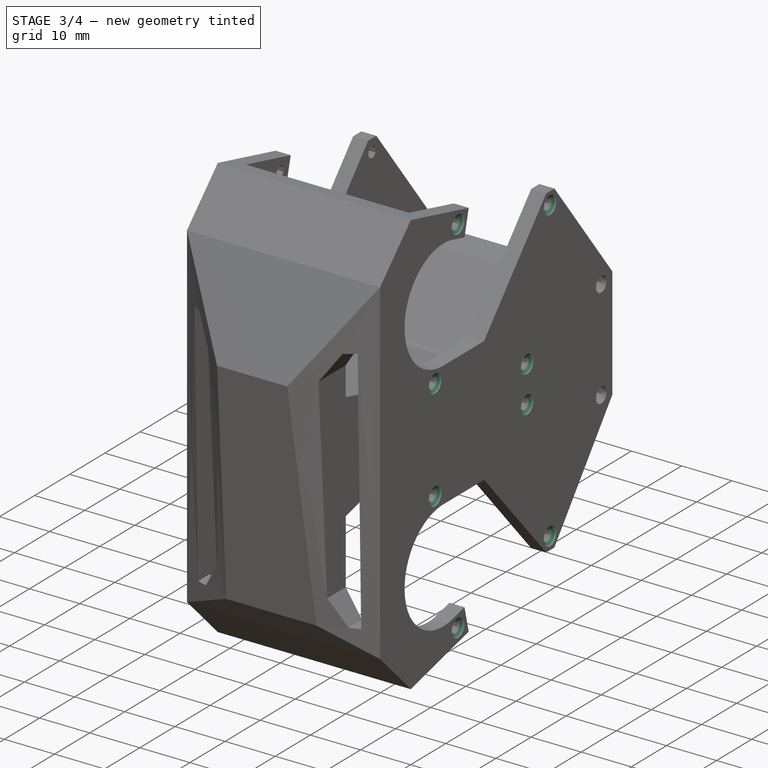
[diagram: stage 3 of 4 — iso view after this stage's code; geometry added in this stage tinted green]
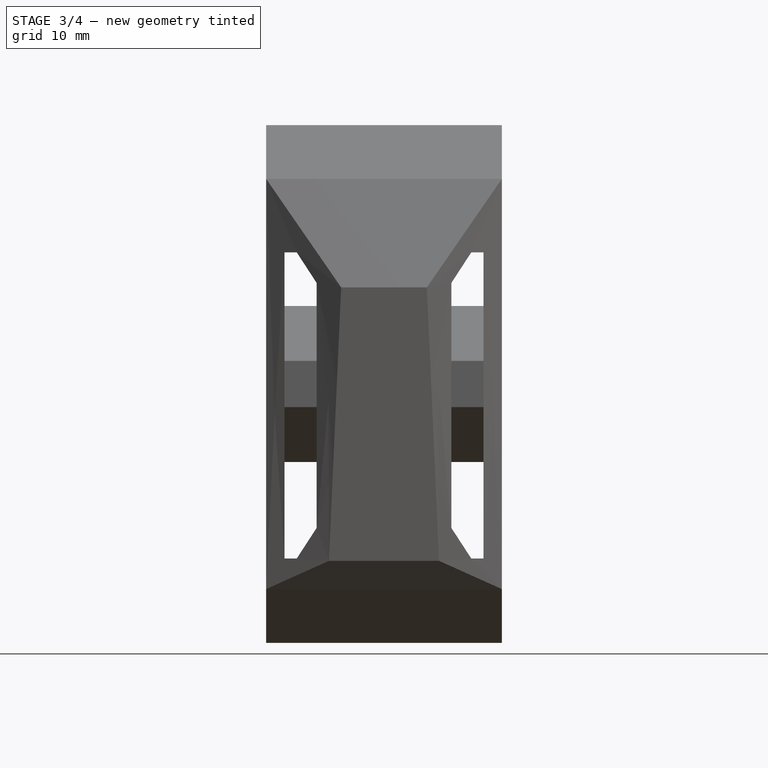
[diagram: stage 3 of 4 — front view after this stage's code; geometry added in this stage tinted green]
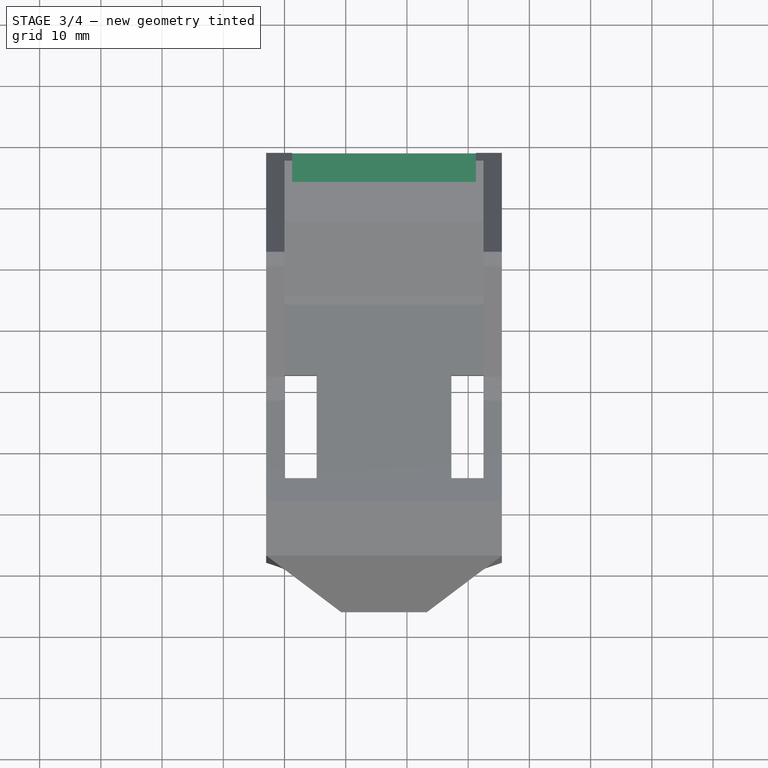
[diagram: stage 3 of 4 — top view after this stage's code; geometry added in this stage tinted green]
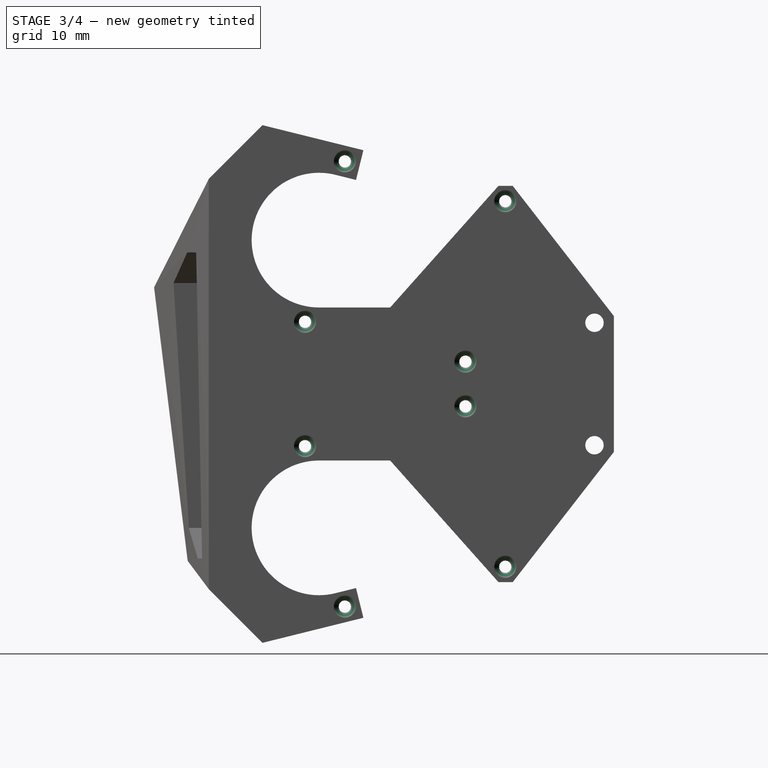
[diagram: stage 3 of 4 — right view after this stage's code; geometry added in this stage tinted green]
FEATURE [PartDesign::Pocket] Pocket001
  BaseFeature = -> Pocket
  Direction = (-1,7e-16,-7e-16)
  Length = 30
  Length2 = 5
  Placement = pos=(0,0,0) rot=(1,1,1;2.0944rad)
  Profile = -> Sketch003
  ReferenceAxis = -> Sketch003 [N_Axis]
  Type = 0
FEATURE [Sketcher::SketchObject] Sketch007
  AttachmentOffset = pos=(0,0,-1) rot=(0,0,1;0rad)
  ExternalGeometry = -> [Pocket001]
  FullyConstrained = true
  MapMode = 5
  Placement = pos=(34.5,-5.47e-14,3.83e-14) rot=(0.57735,0.57735,0.57735;2.0944rad)
  Support = -> [Pocket001]
  sketch-geometry (90):
    g0: LineSegment StartX=5.22432 StartY=35.9468 StartZ=0 EndX=5.22432 EndY=36.7752 EndZ=0
    g1: LineSegment StartX=5.22432 StartY=36.7752 StartZ=0 EndX=4.63853 EndY=37.361 EndZ=0
    g2: LineSegment StartX=4.63853 StartY=37.361 StartZ=0 EndX=3.8101 EndY=37.361 EndZ=0
    g3: LineSegment StartX=3.8101 StartY=37.361 StartZ=0 EndX=3.22432 EndY=36.7752 EndZ=0
    g4: LineSegment StartX=3.22432 StartY=36.7752 StartZ=0 EndX=3.22432 EndY=35.9468 EndZ=0
    g5: LineSegment StartX=3.22432 StartY=35.9468 StartZ=0 EndX=3.8101 EndY=35.361 EndZ=0
    g6: LineSegment StartX=3.8101 StartY=35.361 StartZ=0 EndX=4.63853 EndY=35.361 EndZ=0
    g7: LineSegment StartX=4.63853 StartY=35.361 StartZ=0 EndX=5.22432 EndY=35.9468 EndZ=0
    g8: Circle CenterX=4.22432 CenterY=36.361 CenterZ=0 NormalX=0 NormalY=0 NormalZ=1 AngleXU=0 Radius=1.08239
    g9: LineSegment StartX=-1.86907 StartY=9.15696 StartZ=0 EndX=-1.28328 EndY=9.74275 EndZ=0
    g10: LineSegment StartX=-1.28328 StartY=9.74275 StartZ=0 EndX=-1.28328 EndY=10.5712 EndZ=0
    g11: LineSegment StartX=-1.28328 StartY=10.5712 StartZ=0 EndX=-1.86907 EndY=11.157 EndZ=0
    g12: LineSegment StartX=-1.86907 StartY=11.157 StartZ=0 EndX=-2.69749 EndY=11.157 EndZ=0
    g13: LineSegment StartX=-2.69749 StartY=11.157 StartZ=0 EndX=-3.28328 EndY=10.5712 EndZ=0
    g14: LineSegment StartX=-3.28328 StartY=10.5712 StartZ=0 EndX=-3.28328 EndY=9.74275 EndZ=0
    g15: LineSegment StartX=-3.28328 StartY=9.74275 StartZ=0 EndX=-2.69749 EndY=9.15696 EndZ=0
    g16: LineSegment StartX=-2.69749 StartY=9.15696 StartZ=0 EndX=-1.86907 EndY=9.15696 EndZ=0
    g17: Circle CenterX=-2.28328 CenterY=10.157 CenterZ=0 NormalX=0 NormalY=0 NormalZ=1 AngleXU=0 Radius=1.08239
    g18: LineSegment StartX=-1.28328 StartY=-10.5712 StartZ=0 EndX=-1.28328 EndY=-9.74275 EndZ=0
    g19: LineSegment StartX=-1.28328 StartY=-9.74275 StartZ=0 EndX=-1.86907 EndY=-9.15696 EndZ=0
    g20: LineSegment StartX=-1.86907 StartY=-9.15696 StartZ=0 EndX=-2.69749 EndY=-9.15696 EndZ=0
    g21: LineSegment StartX=-2.69749 StartY=-9.15696 StartZ=0 EndX=-3.28328 EndY=-9.74275 EndZ=0
    g22: LineSegment StartX=-3.28328 StartY=-9.74275 StartZ=0 EndX=-3.28328 EndY=-10.5712 EndZ=0
    g23: LineSegment StartX=-3.28328 StartY=-10.5712 StartZ=0 EndX=-2.69749 EndY=-11.157 EndZ=0
    g24: LineSegment StartX=-2.69749 StartY=-11.157 StartZ=0 EndX=-1.86907 EndY=-11.157 EndZ=0
    g25: LineSegment StartX=-1.86907 StartY=-11.157 StartZ=0 EndX=-1.28328 EndY=-10.5712 EndZ=0
    g26: Circle CenterX=-2.28328 CenterY=-10.157 CenterZ=0 NormalX=0 NormalY=0 NormalZ=1 AngleXU=0 Radius=1.08239
    g27: LineSegment StartX=4.63853 StartY=-37.361 StartZ=0 EndX=5.22432 EndY=-36.7752 EndZ=0
    g28: LineSegment StartX=5.22432 StartY=-36.7752 StartZ=0 EndX=5.22432 EndY=-35.9468 EndZ=0
    g29: LineSegment StartX=5.22432 StartY=-35.9468 StartZ=0 EndX=4.63853 EndY=-35.361 EndZ=0
    g30: LineSegment StartX=4.63853 StartY=-35.361 StartZ=0 EndX=3.8101 EndY=-35.361 EndZ=0
    g31: LineSegment StartX=3.8101 StartY=-35.361 StartZ=0 EndX=3.22432 EndY=-35.9468 EndZ=0
    g32: LineSegment StartX=3.22432 StartY=-35.9468 StartZ=0 EndX=3.22432 EndY=-36.7752 EndZ=0
    g33: LineSegment StartX=3.22432 StartY=-36.7752 StartZ=0 EndX=3.8101 EndY=-37.361 EndZ=0
    g34: LineSegment StartX=3.8101 StartY=-37.361 StartZ=0 EndX=4.63853 EndY=-37.361 EndZ=0
    g35: Circle CenterX=4.22432 CenterY=-36.361 CenterZ=0 NormalX=0 NormalY=0 NormalZ=1 AngleXU=0 Radius=1.08239
    g36: LineSegment StartX=30.8426 StartY=-30.8534 StartZ=0 EndX=31.4283 EndY=-30.2676 EndZ=0
    g37: LineSegment StartX=31.4283 StartY=-30.2676 StartZ=0 EndX=31.4283 EndY=-29.4392 EndZ=0
    g38: LineSegment StartX=31.4283 StartY=-29.4392 StartZ=0 EndX=30.8426 EndY=-28.8534 EndZ=0
    g39: LineSegment StartX=30.8426 StartY=-28.8534 StartZ=0 EndX=30.0141 EndY=-28.8534 EndZ=0
    g40: LineSegment StartX=30.0141 StartY=-28.8534 StartZ=0 EndX=29.4283 EndY=-29.4392 EndZ=0
    g41: LineSegment StartX=29.4283 StartY=-29.4392 StartZ=0 EndX=29.4283 EndY=-30.2676 EndZ=0
    g42: LineSegment StartX=29.4283 StartY=-30.2676 StartZ=0 EndX=30.0141 EndY=-30.8534 EndZ=0
    g43: LineSegment StartX=30.0141 StartY=-30.8534 StartZ=0 EndX=30.8426 EndY=-30.8534 EndZ=0
    g44: Circle CenterX=30.4283 CenterY=-29.8534 CenterZ=0 NormalX=0 NormalY=0 NormalZ=1 AngleXU=0 Radius=1.08239
    g45: LineSegment StartX=24.335 StartY=-4.64937 StartZ=0 EndX=24.9208 EndY=-4.06358 EndZ=0
    g46: LineSegment StartX=24.9208 StartY=-4.06358 StartZ=0 EndX=24.9208 EndY=-3.23515 EndZ=0
    g47: LineSegment StartX=24.9208 StartY=-3.23515 StartZ=0 EndX=24.335 EndY=-2.64937 EndZ=0
    g48: LineSegment StartX=24.335 StartY=-2.64937 StartZ=0 EndX=23.5065 EndY=-2.64937 EndZ=0
    g49: LineSegment StartX=23.5065 StartY=-2.64937 StartZ=0 EndX=22.9208 EndY=-3.23515 EndZ=0
    g50: LineSegment StartX=22.9208 StartY=-3.23515 StartZ=0 EndX=22.9208 EndY=-4.06358 EndZ=0
    g51: LineSegment StartX=22.9208 StartY=-4.06358 StartZ=0 EndX=23.5065 EndY=-4.64937 EndZ=0
    g52: LineSegment StartX=23.5065 StartY=-4.64937 StartZ=0 EndX=24.335 EndY=-4.64937 EndZ=0
    g53: Circle CenterX=23.9208 CenterY=-3.64937 CenterZ=0 NormalX=0 NormalY=0 NormalZ=1 AngleXU=0 Radius=1.08239
    g54: LineSegment StartX=24.335 StartY=2.64937 StartZ=0 EndX=24.9208 EndY=3.23515 EndZ=0
    g55: LineSegment StartX=24.9208 StartY=3.23515 StartZ=0 EndX=24.9208 EndY=4.06358 EndZ=0
    g56: LineSegment StartX=24.9208 StartY=4.06358 StartZ=0 EndX=24.335 EndY=4.64937 EndZ=0
    g57: LineSegment StartX=24.335 StartY=4.64937 StartZ=0 EndX=23.5065 EndY=4.64937 EndZ=0
    g58: LineSegment StartX=23.5065 StartY=4.64937 StartZ=0 EndX=22.9208 EndY=4.06358 EndZ=0
    g59: LineSegment StartX=22.9208 StartY=4.06358 StartZ=0 EndX=22.9208 EndY=3.23515 EndZ=0
    g60: LineSegment StartX=22.9208 StartY=3.23515 StartZ=0 EndX=23.5065 EndY=2.64937 EndZ=0
    g61: LineSegment StartX=23.5065 StartY=2.64937 StartZ=0 EndX=24.335 EndY=2.64937 EndZ=0
    g62: Circle CenterX=23.9208 CenterY=3.64937 CenterZ=0 NormalX=0 NormalY=0 NormalZ=1 AngleXU=0 Radius=1.08239
    g63: LineSegment StartX=30.8426 StartY=28.8534 StartZ=0 EndX=31.4283 EndY=29.4392 EndZ=0
    g64: LineSegment StartX=31.4283 StartY=29.4392 StartZ=0 EndX=31.4283 EndY=30.2676 EndZ=0
    g65: LineSegment StartX=31.4283 StartY=30.2676 StartZ=0 EndX=30.8426 EndY=30.8534 EndZ=0
    g66: LineSegment StartX=30.8426 StartY=30.8534 StartZ=0 EndX=30.0141 EndY=30.8534 EndZ=0
    g67: LineSegment StartX=30.0141 StartY=30.8534 StartZ=0 EndX=29.4283 EndY=30.2676 EndZ=0
    g68: LineSegment StartX=29.4283 StartY=30.2676 StartZ=0 EndX=29.4283 EndY=29.4392 EndZ=0
    g69: LineSegment StartX=29.4283 StartY=29.4392 StartZ=0 EndX=30.0141 EndY=28.8534 EndZ=0
    g70: LineSegment StartX=30.0141 StartY=28.8534 StartZ=0 EndX=30.8426 EndY=28.8534 EndZ=0
    g71: Circle CenterX=30.4283 CenterY=29.8534 CenterZ=0 NormalX=0 NormalY=0 NormalZ=1 AngleXU=0 Radius=1.08239
    g72: LineSegment StartX=43.5 StartY=10.6213 StartZ=0 EndX=43.5 EndY=9.37868 EndZ=0
    g73: LineSegment StartX=43.5 StartY=9.37868 StartZ=0 EndX=44.3787 EndY=8.5 EndZ=0
    g74: LineSegment StartX=44.3787 StartY=8.5 StartZ=0 EndX=45.6213 EndY=8.5 EndZ=0
    g75: LineSegment StartX=45.6213 StartY=8.5 StartZ=0 EndX=46.5 EndY=9.37868 EndZ=0
    g76: LineSegment StartX=46.5 StartY=9.37868 StartZ=0 EndX=46.5 EndY=10.6213 EndZ=0
    g77: LineSegment StartX=46.5 StartY=10.6213 StartZ=0 EndX=45.6213 EndY=11.5 EndZ=0
    g78: LineSegment StartX=45.6213 StartY=11.5 StartZ=0 EndX=44.3787 EndY=11.5 EndZ=0
    g79: LineSegment StartX=44.3787 StartY=11.5 StartZ=0 EndX=43.5 EndY=10.6213 EndZ=0
    g80: Circle CenterX=45 CenterY=10 CenterZ=0 NormalX=0 NormalY=0 NormalZ=1 AngleXU=0 Radius=1.62359
    g81: LineSegment StartX=44.3787 StartY=-8.5 StartZ=0 EndX=43.5 EndY=-9.37868 EndZ=0
    g82: LineSegment StartX=43.5 StartY=-9.37868 StartZ=0 EndX=43.5 EndY=-10.6213 EndZ=0
    g83: LineSegment StartX=43.5 StartY=-10.6213 StartZ=0 EndX=44.3787 EndY=-11.5 EndZ=0
    g84: LineSegment StartX=44.3787 StartY=-11.5 StartZ=0 EndX=45.6213 EndY=-11.5 EndZ=0
    g85: LineSegment StartX=45.6213 StartY=-11.5 StartZ=0 EndX=46.5 EndY=-10.6213 EndZ=0
    g86: LineSegment StartX=46.5 StartY=-10.6213 StartZ=0 EndX=46.5 EndY=-9.37868 EndZ=0
    g87: LineSegment StartX=46.5 StartY=-9.37868 StartZ=0 EndX=45.6213 EndY=-8.5 EndZ=0
    g88: LineSegment StartX=45.6213 StartY=-8.5 StartZ=0 EndX=44.3787 EndY=-8.5 EndZ=0
    g89: Circle CenterX=45 CenterY=-10 CenterZ=0 NormalX=0 NormalY=0 NormalZ=1 AngleXU=0 Radius=1.62359
  constraints (200):
    c: Coincident(g0,g1)
    c: Coincident(g1,g2)
    c: Coincident(g2,g3)
    c: Coincident(g3,g4)
    c: Coincident(g4,g5)
    c: Coincident(g5,g6)
    c: Coincident(g6,g7)
    c: Coincident(g7,g0)
    c: Equal(g0, g1-g7) x7
    c: PointOnObject(g0,g8)
    c: PointOnObject(g1,g8)
    c: PointOnObject(g2,g8)
    c: PointOnObject(g3,g8)
    c: PointOnObject(g4,g8)
    c: PointOnObject(g5,g8)
    c: PointOnObject(g6,g8)
    c: PointOnObject(g7,g8)
    c: Coincident(g8,g-3)
    c: Coincident(g9,g10)
    c: Coincident(g10,g11)
    c: Coincident(g11,g12)
    c: Coincident(g12,g13)
    c: Coincident(g13,g14)
    c: Coincident(g14,g15)
    c: Coincident(g15,g16)
    c: Coincident(g16,g9)
    c: Equal(g9, g10-g16) x7
    c: PointOnObject(g9,g17)
    c: PointOnObject(g10,g17)
    c: PointOnObject(g11,g17)
    c: PointOnObject(g12,g17)
    c: PointOnObject(g13,g17)
    c: PointOnObject(g14,g17)
    c: PointOnObject(g15,g17)
    c: PointOnObject(g16,g17)
    c: Coincident(g17,g-4)
    c: Coincident(g18,g19)
    c: Coincident(g19,g20)
    c: Coincident(g20,g21)
    c: Coincident(g21,g22)
    c: Coincident(g22,g23)
    c: Coincident(g23,g24)
    c: Coincident(g24,g25)
    c: Coincident(g25,g18)
    c: Equal(g18, g19-g25) x7
    c: PointOnObject(g18,g26)
    c: PointOnObject(g19,g26)
    c: PointOnObject(g20,g26)
    c: PointOnObject(g21,g26)
    c: PointOnObject(g22,g26)
    c: PointOnObject(g23,g26)
    c: PointOnObject(g24,g26)
    c: PointOnObject(g25,g26)
    c: Coincident(g26,g-5)
    c: Coincident(g27,g28)
    c: Coincident(g28,g29)
    c: Coincident(g29,g30)
    c: Coincident(g30,g31)
    c: Coincident(g31,g32)
    c: Coincident(g32,g33)
    c: Coincident(g33,g34)
    c: Coincident(g34,g27)
    c: Equal(g27, g28-g34) x7
    c: PointOnObject(g27,g35)
    c: PointOnObject(g28,g35)
    c: PointOnObject(g29,g35)
    c: PointOnObject(g30,g35)
    c: PointOnObject(g31,g35)
    c: PointOnObject(g32,g35)
    c: PointOnObject(g33,g35)
    c: PointOnObject(g34,g35)
    c: Coincident(g35,g-6)
    c: Coincident(g36,g37)
    c: Coincident(g37,g38)
    c: Coincident(g38,g39)
    c: Coincident(g39,g40)
    c: Coincident(g40,g41)
    c: Coincident(g41,g42)
    c: Coincident(g42,g43)
    c: Coincident(g43,g36)
    c: Equal(g36, g37-g43) x7
    c: PointOnObject(g36,g44)
    c: PointOnObject(g37,g44)
    c: PointOnObject(g38,g44)
    c: PointOnObject(g39,g44)
    c: PointOnObject(g40,g44)
    c: PointOnObject(g41,g44)
    c: PointOnObject(g42,g44)
    c: PointOnObject(g43,g44)
    c: Coincident(g44,g-10)
    c: Coincident(g45,g46)
    c: Coincident(g46,g47)
    c: Coincident(g47,g48)
    c: Coincident(g48,g49)
    c: Coincident(g49,g50)
    c: Coincident(g50,g51)
    c: Coincident(g51,g52)
    c: Coincident(g52,g45)
    c: Equal(g45, g46-g52) x7
    c: PointOnObject(g45,g53)
    c: PointOnObject(g46,g53)
    c: PointOnObject(g47,g53)
    c: PointOnObject(g48,g53)
    c: PointOnObject(g49,g53)
    c: PointOnObject(g50,g53)
    c: PointOnObject(g51,g53)
    c: PointOnObject(g52,g53)
    c: Coincident(g53,g-7)
    c: Coincident(g54,g55)
    c: Coincident(g55,g56)
    c: Coincident(g56,g57)
    c: Coincident(g57,g58)
    c: Coincident(g58,g59)
    c: Coincident(g59,g60)
    c: Coincident(g60,g61)
    c: Coincident(g61,g54)
    c: Equal(g54, g55-g61) x7
    c: PointOnObject(g54,g62)
    c: PointOnObject(g55,g62)
    c: PointOnObject(g56,g62)
    c: PointOnObject(g57,g62)
    c: PointOnObject(g58,g62)
    c: PointOnObject(g59,g62)
    c: PointOnObject(g60,g62)
    c: PointOnObject(g61,g62)
    c: Coincident(g62,g-8)
    c: Coincident(g63,g64)
    c: Coincident(g64,g65)
    c: Coincident(g65,g66)
    c: Coincident(g66,g67)
    c: Coincident(g67,g68)
    c: Coincident(g68,g69)
    c: Coincident(g69,g70)
    c: Coincident(g70,g63)
    c: Equal(g63, g64-g70) x7
    c: PointOnObject(g63,g71)
    c: PointOnObject(g64,g71)
    c: PointOnObject(g65,g71)
    c: PointOnObject(g66,g71)
    c: PointOnObject(g67,g71)
    c: PointOnObject(g68,g71)
    c: PointOnObject(g69,g71)
    c: PointOnObject(g70,g71)
    c: Coincident(g71,g-9)
    c: Horizontal(g6)
    c: Horizontal(g70)
    c: Horizontal(g16)
    c: Horizontal(g24)
    c: Horizontal(g61)
    c: Horizontal(g52)
    c: Horizontal(g43)
    c: Horizontal(g34)
    c: Equal(g26,g17)
    c: Equal(g17,g8)
    c: Equal(g8,g71)
    c: Equal(g71,g62)
    c: Equal(g62,g53)
    c: Equal(g53,g44)
    c: Equal(g44,g35)
    c: Coincident(g72,g73)
    c: Coincident(g73,g74)
    c: Coincident(g74,g75)
    c: Coincident(g75,g76)
    c: Coincident(g76,g77)
    c: Coincident(g77,g78)
    c: Coincident(g78,g79)
    c: Coincident(g79,g72)
    c: Equal(g72, g73-g79) x7
    c: PointOnObject(g72,g80)
    c: PointOnObject(g73,g80)
    c: PointOnObject(g74,g80)
    c: PointOnObject(g75,g80)
    c: PointOnObject(g76,g80)
    c: PointOnObject(g77,g80)
    c: PointOnObject(g78,g80)
    c: PointOnObject(g79,g80)
    c: Coincident(g80,g-11)
    c: Coincident(g81,g82)
    c: Coincident(g82,g83)
    c: Coincident(g83,g84)
    c: Coincident(g84,g85)
    c: Coincident(g85,g86)
    c: Coincident(g86,g87)
    c: Coincident(g87,g88)
    c: Coincident(g88,g81)
    c: Equal(g81, g82-g88) x7
    c: PointOnObject(g81,g89)
    c: PointOnObject(g82,g89)
    c: PointOnObject(g83,g89)
    c: PointOnObject(g84,g89)
    c: PointOnObject(g85,g89)
    c: PointOnObject(g86,g89)
    c: PointOnObject(g87,g89)
    c: PointOnObject(g88,g89)
    c: Coincident(g89,g-12)
    c: Horizontal(g78)
    c: Horizontal(g88)
    c: Equal(g89,g80)
    c: Tangent(g78,g-11)
    c: Tangent(g6,g-3)
FEATURE [PartDesign::Pocket] Pocket002
  BaseFeature = -> Pocket001
  Direction = (-1,1.6e-15,-1.1e-15)
  Length = 36.5
  Length2 = 5
  Placement = pos=(0,0,0) rot=(1,1,1;2.0944rad)
  Profile = -> Sketch007
  ReferenceAxis = -> Sketch007 [N_Axis]
  Type = 0
FEATURE [PartDesign::Chamfer] Chamfer
  Angle = 45
  Base = -> Pocket002 [Edge325,Edge324,Edge322,Edge321,Edge320,Edge326,Edge327,Edge323,Edge58,Edge62,Edge56,Edge55,Edge61,Edge60,Edge59,Edge57]
  BaseFeature = -> Pocket002
  ChamferType = 0
  FlipDirection = false
  Placement = pos=(0,0,0) rot=(1,1,1;2.0944rad)
  Size = 0.8
  Size2 = 1
  SupportTransform = false
  UseAllEdges = false
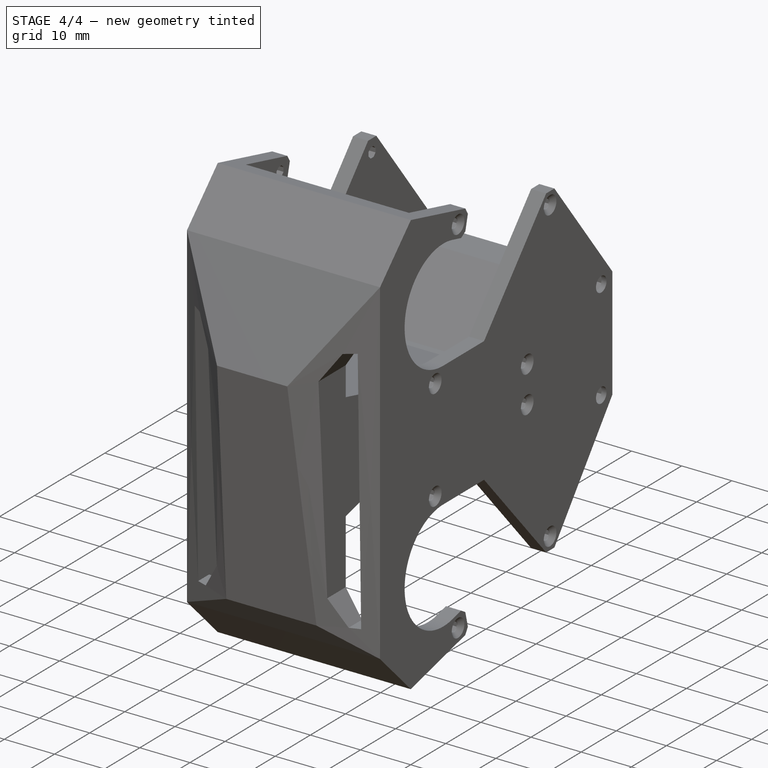
[diagram: stage 4 of 4 — iso view after this stage's code; geometry added in this stage tinted green]
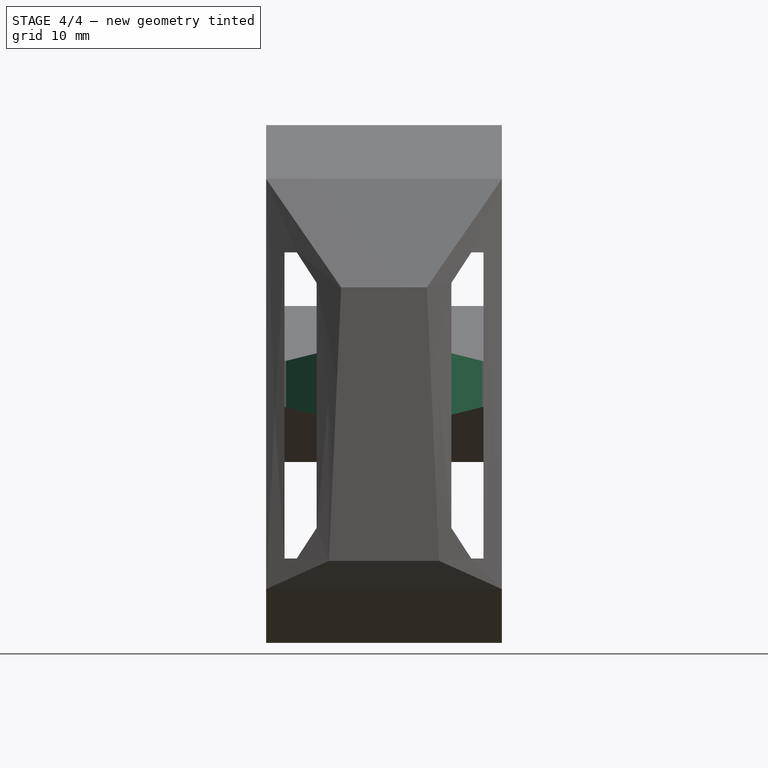
[diagram: stage 4 of 4 — front view after this stage's code; geometry added in this stage tinted green]
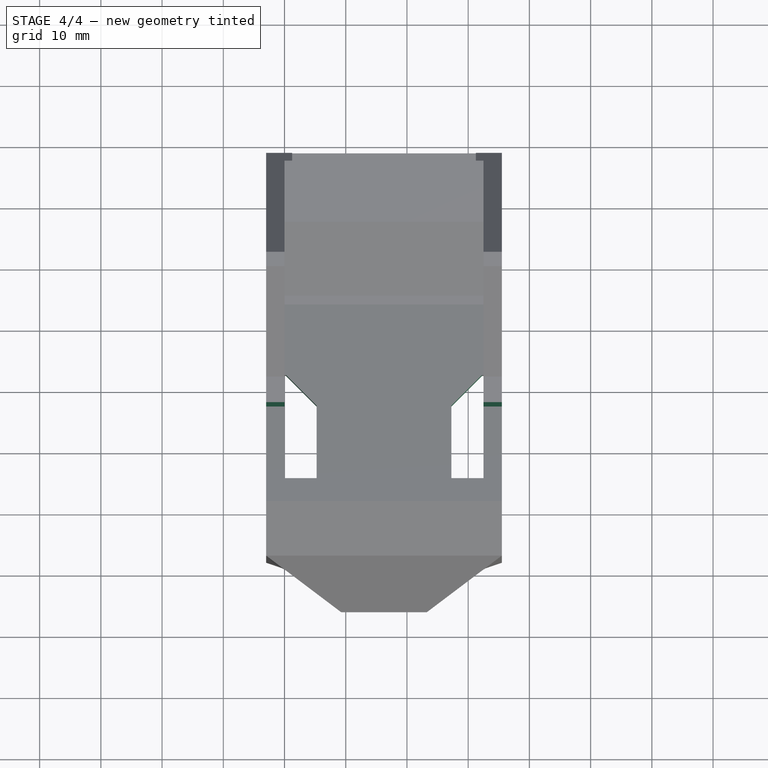
[diagram: stage 4 of 4 — top view after this stage's code; geometry added in this stage tinted green]
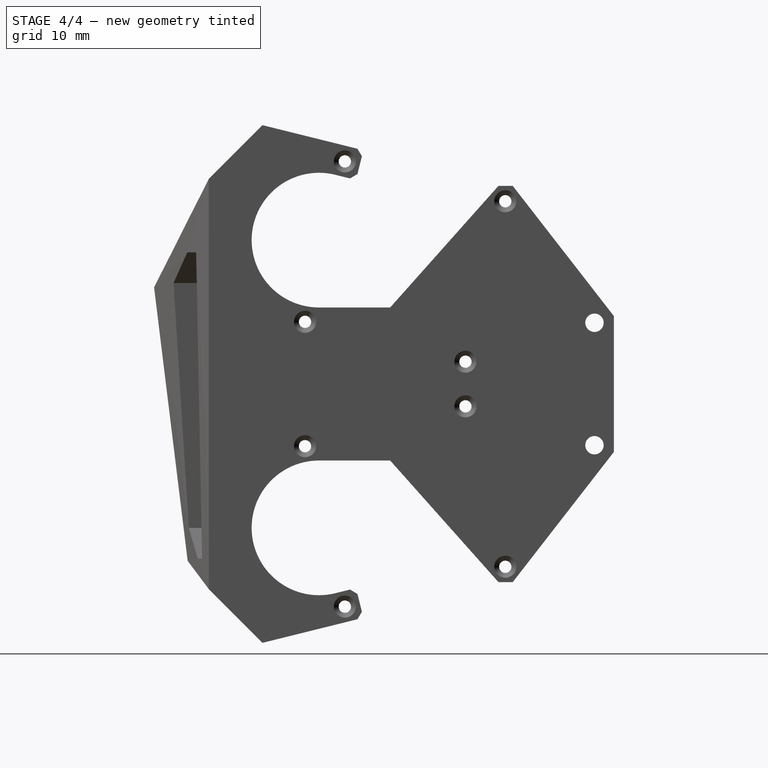
[diagram: stage 4 of 4 — right view after this stage's code; geometry added in this stage tinted green]
FEATURE [PartDesign::Chamfer] Chamfer001
  Angle = 45
  Base = -> Chamfer [Edge440,Edge897,Edge34,Edge37,Edge1108,Edge817,Edge69,Edge71]
  BaseFeature = -> Chamfer
  ChamferType = 0
  FlipDirection = false
  Placement = pos=(0,0,0) rot=(1,1,1;2.0944rad)
  Size = 1
  Size2 = 1
  SupportTransform = false
  UseAllEdges = false
FEATURE [PartDesign::Chamfer] Chamfer002
  Angle = 45
  Base = -> Chamfer001 [Edge912,Edge168]
  BaseFeature = -> Chamfer001
  ChamferType = 0
  FlipDirection = false
  Placement = pos=(0,0,0) rot=(1,1,1;2.0944rad)
  Size = 5
  Size2 = 1
  SupportTransform = false
  UseAllEdges = false
FEATURE [PartDesign::Body] Body
  Group = -> [Sketch,Pad,Sketch001,Pad001,Sketch002,Pad002,Sketch003,Sketch004,Sketch005,Sketch006,AdditiveLoft,Pocket,Pocket001,Sketch007,Pocket002,Chamfer,Chamfer001,Chamfer002]
  Origin = -> Origin
  Tip = -> Chamfer002
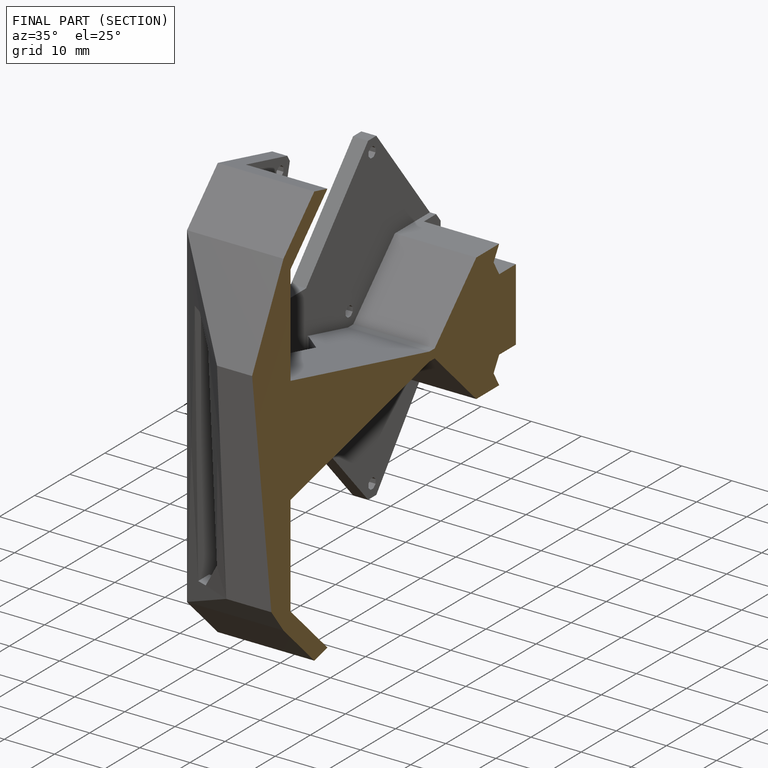
[diagram: finished part — half-section view (interior)]
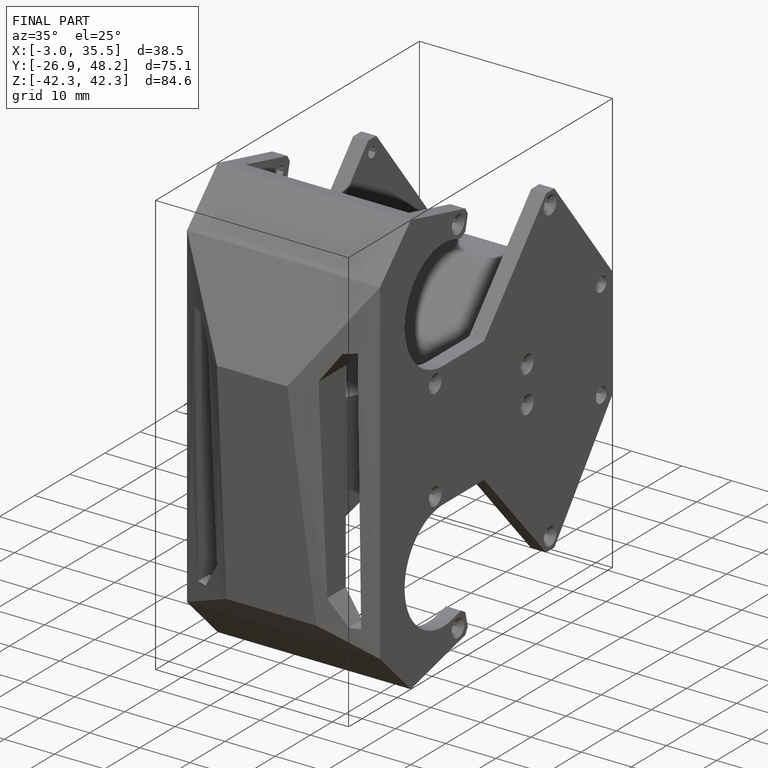
[diagram: finished part — iso view with bounding-box wireframe]
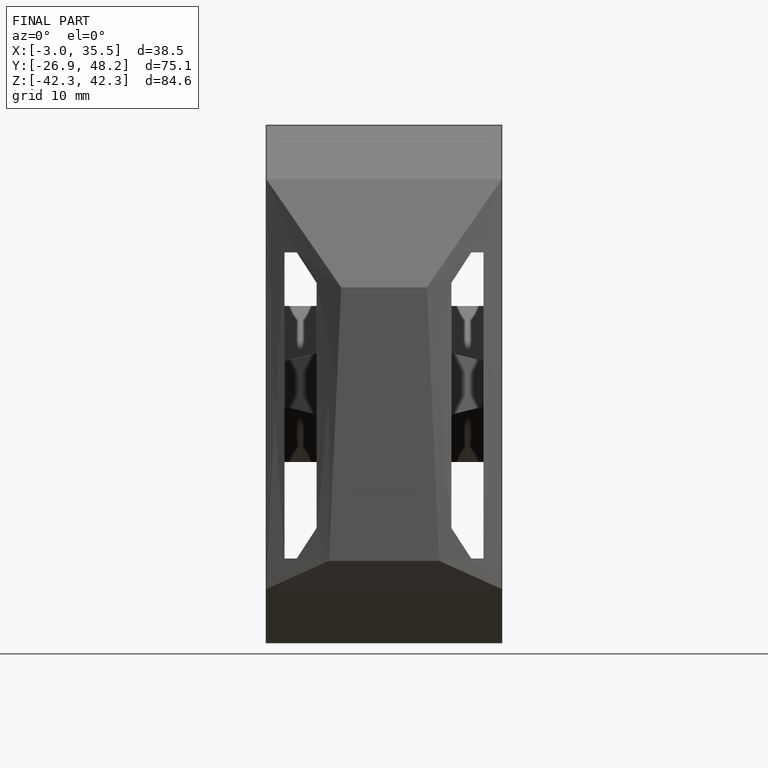
[diagram: finished part — front view with bounding-box wireframe]
